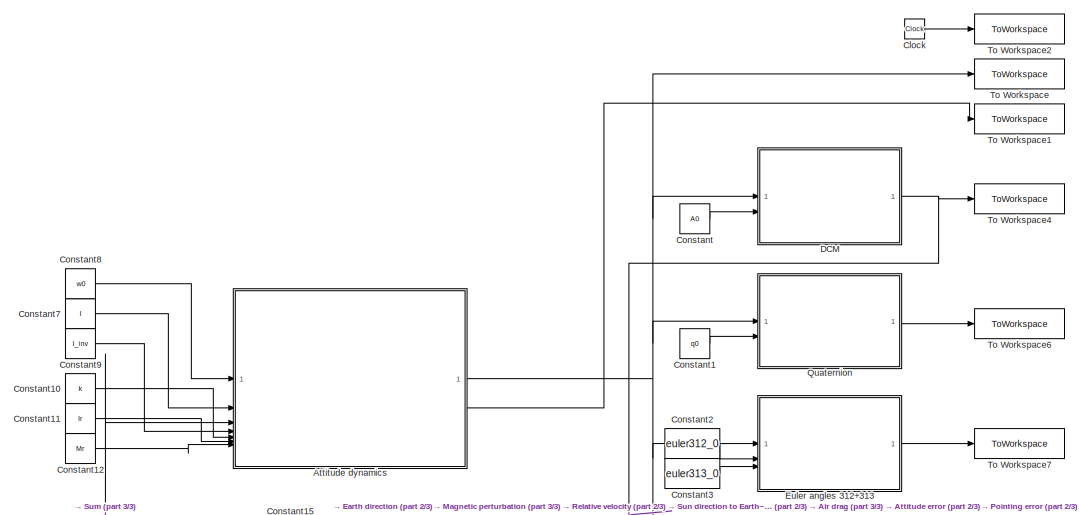
[diagram: root canvas - part 1/3, top center region]
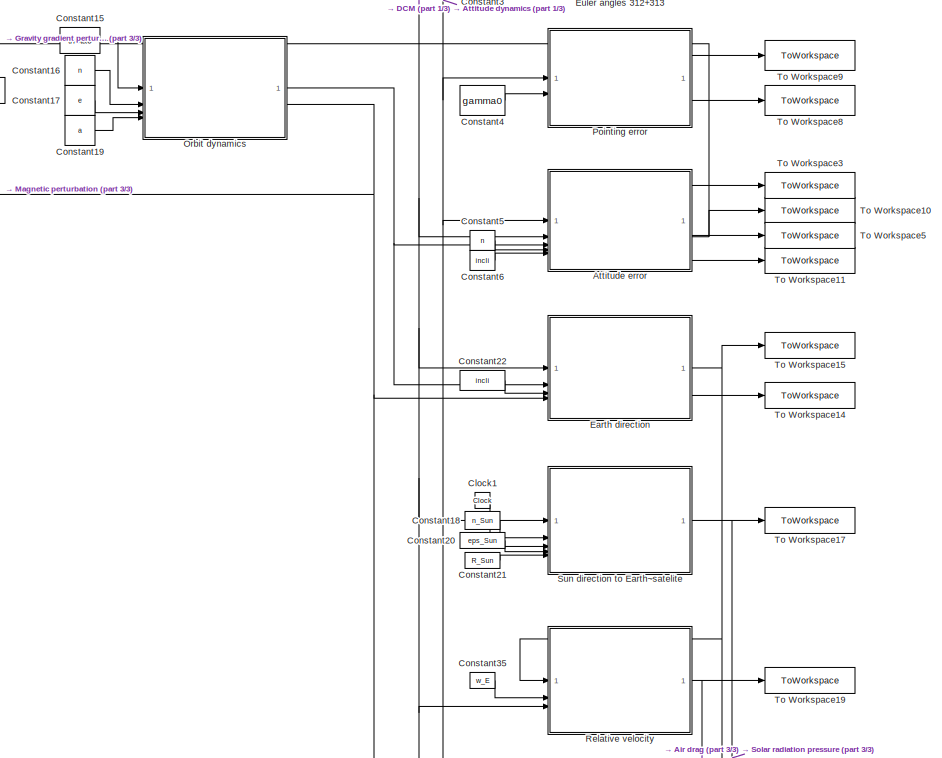
[diagram: root canvas - part 2/3, middle right region]
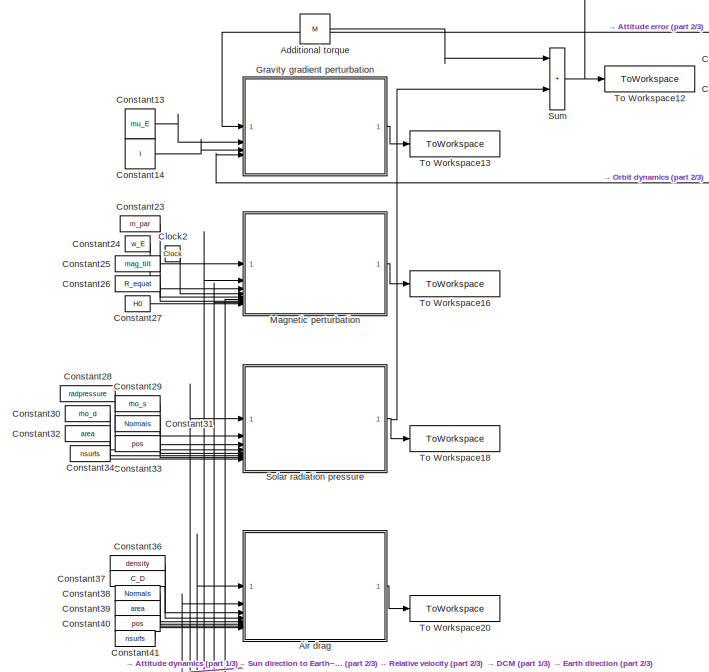
[diagram: root canvas - part 3/3, middle left region]
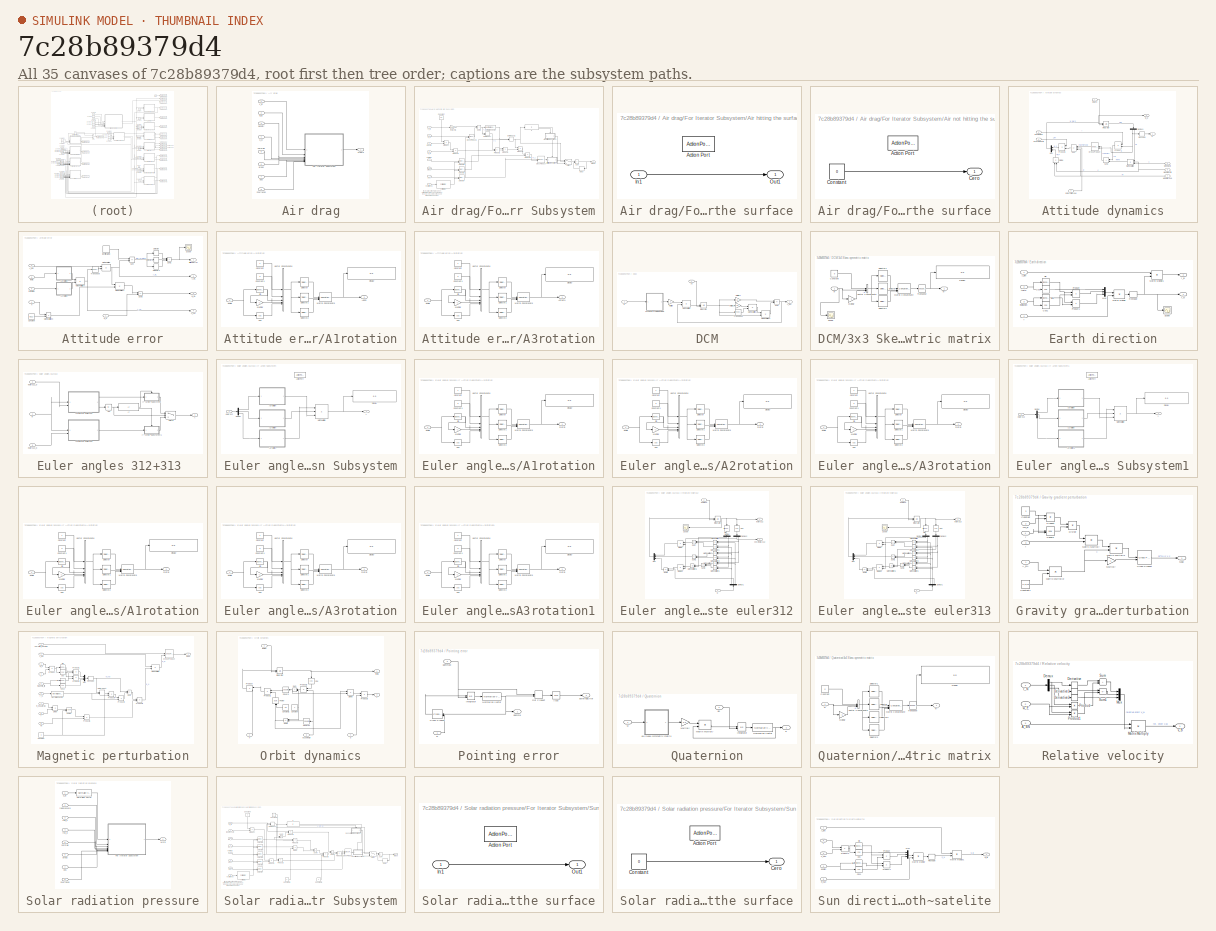
[diagram: thumbnail index - all 35 canvases of the model, root first then tree order]
MODEL slx_7c28b89379d4
KIND model
CONFIG AbsTol = 1e-07
CONFIG EnableMultiTasking = off
CONFIG FixedStep = auto
CONFIG MaxStep = auto
CONFIG MinStep = auto
CONFIG RelTol = 1e-07
CONFIG SampleTimeConstraint = Unconstrained
CONFIG SolverName = ode45
CONFIG StartTime = 0.0
CONFIG StopTime = sim_time
BLOCK [Constant] Additional torque
  Value = M
  VectorParams1D = off
BLOCK [SubSystem] Air drag
BLOCK [Inport] Air drag/C_D
  Port = 4
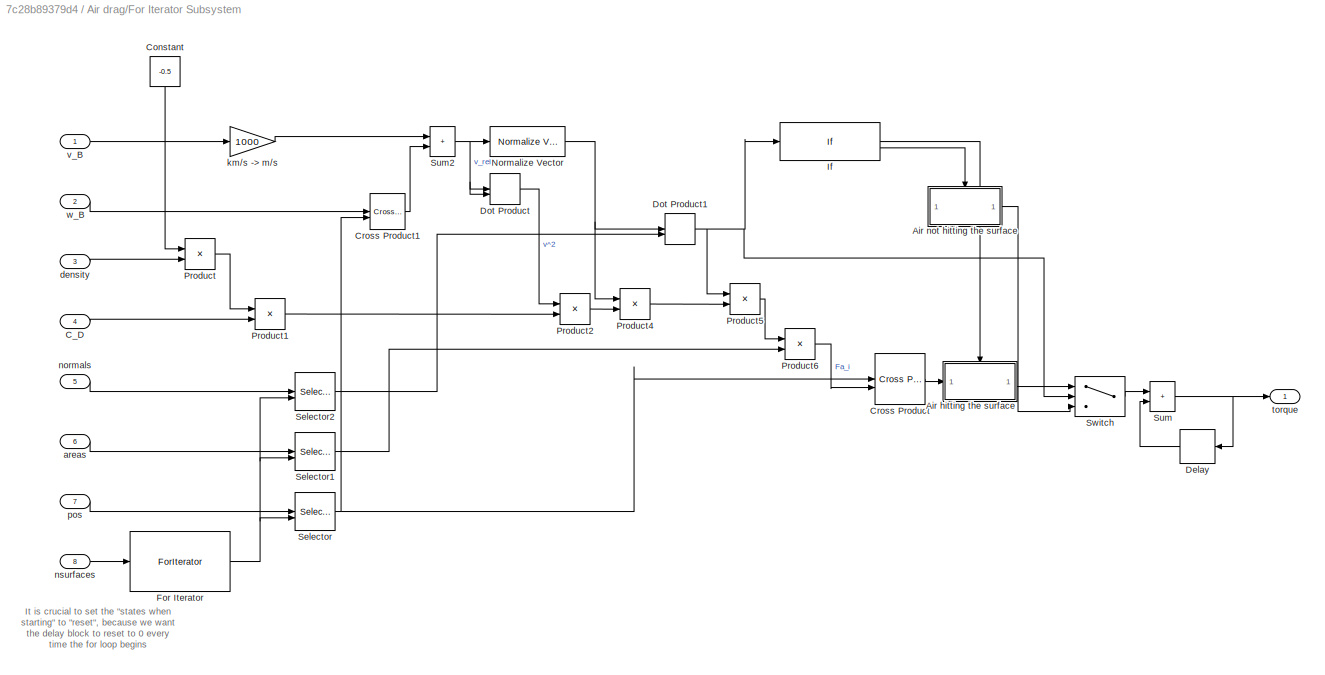
BLOCK [SubSystem] Air drag/For Iterator Subsystem
  TreatAsAtomicUnit = on
BLOCK [SubSystem] Air drag/For Iterator Subsystem/Air hitting the surface
  TreatAsAtomicUnit = on
BLOCK [ActionPort] Air drag/For Iterator Subsystem/Air hitting the surface/Action Port
  ActionPortLabel = if(u1 > 0)
BLOCK [Inport] Air drag/For Iterator Subsystem/Air hitting the surface/In1
BLOCK [Outport] Air drag/For Iterator Subsystem/Air hitting the surface/Out1
BLOCK [SubSystem] Air drag/For Iterator Subsystem/Air not hitting the surface
  TreatAsAtomicUnit = on
BLOCK [ActionPort] Air drag/For Iterator Subsystem/Air not hitting the surface/Action Port
  ActionPortLabel = else
BLOCK [Outport] Air drag/For Iterator Subsystem/Air not hitting the surface/Cero
BLOCK [Constant] Air drag/For Iterator Subsystem/Air not hitting the surface/Constant
  Value = 0
BLOCK [Inport] Air drag/For Iterator Subsystem/C_D
  Port = 4
BLOCK [Constant] Air drag/For Iterator Subsystem/Constant
  NameLocation = left
  Value = -0.5
BLOCK [Reference] Air drag/For Iterator Subsystem/Cross Product  REF=matrix_library/Cross Product
  LibrarySourceBlock = simulink/Matrix\nOperations/Cross Product
  SourceBlock = matrix_library/Cross Product
  SourceType = CrossProduct
BLOCK [Reference] Air drag/For Iterator Subsystem/Cross Product1  REF=matrix_library/Cross Product
  LibrarySourceBlock = simulink/Matrix\nOperations/Cross Product
  SourceBlock = matrix_library/Cross Product
  SourceType = CrossProduct
BLOCK [Delay] Air drag/For Iterator Subsystem/Delay
  DelayLength = 1
  InputPortMap = u0
  NameLocation = top
BLOCK [DotProduct] Air drag/For Iterator Subsystem/Dot Product
  OutDataTypeStr = Inherit: Inherit via internal rule
BLOCK [DotProduct] Air drag/For Iterator Subsystem/Dot Product1
  OutDataTypeStr = Inherit: Inherit via internal rule
BLOCK [ForIterator] Air drag/For Iterator Subsystem/For Iterator
  IterationSource = external
  ResetStates = reset
BLOCK [If] Air drag/For Iterator Subsystem/If
BLOCK [Reference] Air drag/For Iterator Subsystem/Normalize Vector  REF=vrlib/Utilities/Normalize Vector
  SourceBlock = vrlib/Utilities/Normalize Vector
  SourceType = Normalize Vector
BLOCK [Product] Air drag/For Iterator Subsystem/Product
BLOCK [Product] Air drag/For Iterator Subsystem/Product1
BLOCK [Product] Air drag/For Iterator Subsystem/Product2
BLOCK [Product] Air drag/For Iterator Subsystem/Product4
BLOCK [Product] Air drag/For Iterator Subsystem/Product5
BLOCK [Product] Air drag/For Iterator Subsystem/Product6
BLOCK [Selector] Air drag/For Iterator Subsystem/Selector
  IndexOptions = Select all,Index vector (port)
  Indices = [1 3],1
  InputPortWidth = 3
  NumberOfDimensions = 2
  OutputSizes = 1,1
BLOCK [Selector] Air drag/For Iterator Subsystem/Selector1
  IndexOptions = Select all,Index vector (port)
  Indices = [1 3],1
  InputPortWidth = 3
  NumberOfDimensions = 2
  OutputSizes = 1,1
BLOCK [Selector] Air drag/For Iterator Subsystem/Selector2
  IndexOptions = Select all,Index vector (port)
  Indices = [1 3],1
  InputPortWidth = 3
  NumberOfDimensions = 2
  OutputSizes = 1,1
BLOCK [Sum] Air drag/For Iterator Subsystem/Sum
  IconShape = rectangular
  Inputs = |++
BLOCK [Sum] Air drag/For Iterator Subsystem/Sum2
  IconShape = rectangular
  Inputs = |++
BLOCK [Switch] Air drag/For Iterator Subsystem/Switch
  Criteria = u2 > Threshold
  InputSameDT = off
  SaturateOnIntegerOverflow = off
BLOCK [Inport] Air drag/For Iterator Subsystem/areas
  Port = 6
BLOCK [Inport] Air drag/For Iterator Subsystem/density
  Port = 3
BLOCK [Gain] Air drag/For Iterator Subsystem/km//s -> m//s
  Gain = 1000
BLOCK [Inport] Air drag/For Iterator Subsystem/normals
  Port = 5
BLOCK [Inport] Air drag/For Iterator Subsystem/nsurfaces
  Port = 8
BLOCK [Inport] Air drag/For Iterator Subsystem/pos
  Port = 7
BLOCK [Outport] Air drag/For Iterator Subsystem/torque
BLOCK [Inport] Air drag/For Iterator Subsystem/v_B
BLOCK [Inport] Air drag/For Iterator Subsystem/w_B
  Port = 2
BLOCK [Outport] Air drag/Maero
BLOCK [Inport] Air drag/areas
  Port = 6
BLOCK [Inport] Air drag/density
  Port = 3
BLOCK [Inport] Air drag/normals
  Port = 5
BLOCK [Inport] Air drag/nsurfaces
  Port = 8
BLOCK [Inport] Air drag/pos
  Port = 7
BLOCK [Inport] Air drag/v_B
BLOCK [Inport] Air drag/w_B
  Port = 2
BLOCK [SubSystem] Attitude dynamics
BLOCK [Reference] Attitude dynamics/Cross Product  REF=matrix_library/Cross Product
  LibrarySourceBlock = simulink/Matrix\nOperations/Cross Product
  NameLocation = top
  SourceBlock = matrix_library/Cross Product
  SourceType = CrossProduct
BLOCK [Demux] Attitude dynamics/Demux1
  NameLocation = left
  Outputs = 2
BLOCK [Product] Attitude dynamics/Divide
  Inputs = */
  NameLocation = right
BLOCK [Inport] Attitude dynamics/External torque
  Port = 3
BLOCK [Inport] Attitude dynamics/Inertia matrix
  Port = 2
BLOCK [Integrator] Attitude dynamics/Integrator
  InitialConditionSource = external
BLOCK [Inport] Attitude dynamics/Inverted Inertia
  Port = 4
BLOCK [Product] Attitude dynamics/Matrix Multiply
  Inputs = 3
  NameLocation = top
BLOCK [Mux] Attitude dynamics/Mux
  DisplayOption = bar
  Inputs = 2
  NameLocation = top
BLOCK [Product] Attitude dynamics/Product
  Multiplication = Matrix(*)
  NameLocation = top
BLOCK [Product] Attitude dynamics/Product1
  Multiplication = Matrix(*)
  NameLocation = top
BLOCK [Reshape] Attitude dynamics/Reshape
  OutputDimensionality = Column vector (2-D)
BLOCK [Sum] Attitude dynamics/Sum
  IconShape = rectangular
  Inputs = |++-
  NameLocation = top
BLOCK [Sum] Attitude dynamics/Sum1
  IconShape = rectangular
  Inputs = |++
  NameLocation = top
BLOCK [Inport] Attitude dynamics/Wheel axis
  NameLocation = top
  Port = 5
BLOCK [Inport] Attitude dynamics/Wheel inertia
  NameLocation = top
  Port = 6
BLOCK [Inport] Attitude dynamics/Wheel torque
  NameLocation = top
  Port = 7
BLOCK [Outport] Attitude dynamics/w
BLOCK [Inport] Attitude dynamics/w0, wr0
BLOCK [Outport] Attitude dynamics/w_d
  Port = 2
BLOCK [SubSystem] Attitude error
BLOCK [SubSystem] Attitude error/A1rotation
BLOCK [Outport] Attitude error/A1rotation/A1incli
BLOCK [Constant] Attitude error/A1rotation/Constant
BLOCK [Constant] Attitude error/A1rotation/Constant1
  Value = 0
BLOCK [Trigonometry] Attitude error/A1rotation/Cos
  Operator = cos
BLOCK [Display] Attitude error/A1rotation/Display
  Decimation = 1
BLOCK [Concatenate] Attitude error/A1rotation/Matrix Concatenate
  ConcatenateDimension = 2
  Mode = Multidimensional array
  NumInputs = 3
BLOCK [Gain] Attitude error/A1rotation/Multiply
  Gain = -1
BLOCK [Selector] Attitude error/A1rotation/Selector
  IndexOptions = Index vector (dialog)
  Indices = [1 2 2]
  InputPortWidth = 5
  OutputSizes = 1
BLOCK [Selector] Attitude error/A1rotation/Selector1
  IndexOptions = Index vector (dialog)
  Indices = [2 5 4]
  InputPortWidth = 5
  OutputSizes = 1
BLOCK [Selector] Attitude error/A1rotation/Selector2
  IndexOptions = Index vector (dialog)
  Indices = [2 3 5]
  InputPortWidth = 5
  OutputSizes = 1
BLOCK [Trigonometry] Attitude error/A1rotation/Sin
BLOCK [Concatenate] Attitude error/A1rotation/Vector Concatenate
  NumInputs = 5
BLOCK [Inport] Attitude error/A1rotation/angle
BLOCK [SubSystem] Attitude error/A3rotation
BLOCK [Outport] Attitude error/A3rotation/A3theta
BLOCK [Constant] Attitude error/A3rotation/Constant
BLOCK [Constant] Attitude error/A3rotation/Constant1
  Value = 0
BLOCK [Trigonometry] Attitude error/A3rotation/Cos
  Operator = cos
BLOCK [Display] Attitude error/A3rotation/Display
  Decimation = 1
BLOCK [Concatenate] Attitude error/A3rotation/Matrix Concatenate
  ConcatenateDimension = 2
  Mode = Multidimensional array
  NumInputs = 3
BLOCK [Gain] Attitude error/A3rotation/Multiply
  Gain = -1
BLOCK [Selector] Attitude error/A3rotation/Selector
  IndexOptions = Index vector (dialog)
  Indices = [5 4 2]
  InputPortWidth = 5
  OutputSizes = 1
BLOCK [Selector] Attitude error/A3rotation/Selector1
  IndexOptions = Index vector (dialog)
  Indices = [3 5 2]
  InputPortWidth = 5
  OutputSizes = 1
BLOCK [Selector] Attitude error/A3rotation/Selector2
  IndexOptions = Index vector (dialog)
  Indices = [2 2 1]
  InputPortWidth = 5
  OutputSizes = 1
BLOCK [Trigonometry] Attitude error/A3rotation/Sin
BLOCK [Concatenate] Attitude error/A3rotation/Vector Concatenate
  NumInputs = 5
BLOCK [Inport] Attitude error/A3rotation/angle
BLOCK [Outport] Attitude error/A_BL
  Port = 2
BLOCK [Inport] Attitude error/A_BN
  Port = 2
BLOCK [Outport] Attitude error/A_LN
  Port = 4
BLOCK [Constant] Attitude error/Constant
  Value = [0;0;1]
  VectorParams1D = off
BLOCK [IdentityMatrix] Attitude error/IdentityMatrix
  OutputDimensions = 3
BLOCK [Product] Attitude error/Matrix Multiply
  Multiplication = Matrix(*)
BLOCK [Product] Attitude error/Matrix Multiply1
  Multiplication = Matrix(*)
BLOCK [Product] Attitude error/Matrix Multiply2
  Multiplication = Matrix(*)
BLOCK [Product] Attitude error/Matrix Multiply3
BLOCK [Scope] Attitude error/Scope
  Floating = off
  NumInputPorts = 1
  ScopeSpecificationString = Simulink.scopes.TimeScopeBlockCfg('CurrentConfiguration', extmgr.ConfigurationSet(extmgr.Configuration('Core','General UI',true),extmgr.Configuration('Core','Source UI',true),extmgr.Configuration('Sources','WiredSimulink',true,'DataLoggingVariableName','ScopeData1'),extmgr.Configuration('Visuals','Time Domain',true,'SerializedDisplays',{struct('MinYLimReal','-0.0000000000000006','MaxYLimReal','0.0...<+1481ch>
BLOCK [Selector] Attitude error/Selector
  IndexOptions = Index vector (dialog),Index vector (dialog)
  Indices = 1,1
  InputPortWidth = 3
  NumberOfDimensions = 2
  OutputSizes = 1,1
BLOCK [Selector] Attitude error/Selector1
  IndexOptions = Index vector (dialog),Index vector (dialog)
  Indices = 2,2
  InputPortWidth = 3
  NumberOfDimensions = 2
  OutputSizes = 1,1
BLOCK [Selector] Attitude error/Selector2
  IndexOptions = Index vector (dialog),Index vector (dialog)
  Indices = 3,3
  InputPortWidth = 3
  NumberOfDimensions = 2
  OutputSizes = 1,1
BLOCK [Sum] Attitude error/Sum
  IconShape = rectangular
  Inputs = |-+
BLOCK [Sum] Attitude error/Sum1
  IconShape = rectangular
  Inputs = |+++
BLOCK [Sum] Attitude error/Sum2
  IconShape = rectangular
  Inputs = |-+
BLOCK [Math] Attitude error/Transpose
  Operator = transpose
BLOCK [Outport] Attitude error/attitudeError
BLOCK [Inport] Attitude error/inclination
  Port = 5
BLOCK [Inport] Attitude error/n
  Port = 4
BLOCK [Inport] Attitude error/theta
  Port = 3
BLOCK [Inport] Attitude error/w_B
BLOCK [Outport] Attitude error/w_BL
  Port = 3
BLOCK [Clock] Clock
BLOCK [Clock] Clock1
BLOCK [Clock] Clock2
BLOCK [Constant] Constant
  Value = A0
  VectorParams1D = off
BLOCK [Constant] Constant1
  Value = q0
  VectorParams1D = off
BLOCK [Constant] Constant10
  Value = k
  VectorParams1D = off
BLOCK [Constant] Constant11
  Value = Ir
BLOCK [Constant] Constant12
  Value = Mr
BLOCK [Constant] Constant13
  Value = mu_E
BLOCK [Constant] Constant14
  Value = I
  VectorParams1D = off
BLOCK [Constant] Constant15
  Value = theta0
BLOCK [Constant] Constant16
  Value = n
BLOCK [Constant] Constant17
  Value = e
BLOCK [Constant] Constant18
  Value = n_Sun
BLOCK [Constant] Constant19
  Value = a
BLOCK [Constant] Constant2
  Value = euler312_0
  VectorParams1D = off
BLOCK [Constant] Constant20
  Value = eps_Sun
BLOCK [Constant] Constant21
  Value = R_Sun
BLOCK [Constant] Constant22
  Value = incli
BLOCK [Constant] Constant23
  Value = m_par
  VectorParams1D = off
BLOCK [Constant] Constant24
  Value = w_E
BLOCK [Constant] Constant25
  Value = mag_tilt
BLOCK [Constant] Constant26
  Value = R_equat
BLOCK [Constant] Constant27
  Value = H0
BLOCK [Constant] Constant28
  Value = radpressure
BLOCK [Constant] Constant29
  Value = rho_s
  VectorParams1D = off
BLOCK [Constant] Constant3
  Value = euler313_0
  VectorParams1D = off
BLOCK [Constant] Constant30
  Value = rho_d
  VectorParams1D = off
BLOCK [Constant] Constant31
  Value = Normals
  VectorParams1D = off
BLOCK [Constant] Constant32
  Value = area
  VectorParams1D = off
BLOCK [Constant] Constant33
  Value = pos
  VectorParams1D = off
BLOCK [Constant] Constant34
  Value = nsurfs
BLOCK [Constant] Constant35
  Value = w_E
BLOCK [Constant] Constant36
  Value = density
BLOCK [Constant] Constant37
  Value = C_D
BLOCK [Constant] Constant38
  Value = Normals
  VectorParams1D = off
BLOCK [Constant] Constant39
  Value = area
  VectorParams1D = off
BLOCK [Constant] Constant4
  Value = gamma0
  VectorParams1D = off
BLOCK [Constant] Constant40
  Value = pos
  VectorParams1D = off
BLOCK [Constant] Constant41
  Value = nsurfs
BLOCK [Constant] Constant5
  Value = n
BLOCK [Constant] Constant6
  Value = incli
BLOCK [Constant] Constant7
  Value = I
  VectorParams1D = off
BLOCK [Constant] Constant8
  Value = w0
  VectorParams1D = off
BLOCK [Constant] Constant9
  Value = I_inv
  VectorParams1D = off
BLOCK [SubSystem] DCM
BLOCK [SubSystem] DCM/3x3 Skew-symmetric matrix
BLOCK [Constant] DCM/3x3 Skew-symmetric matrix/Constant
  Value = 0
BLOCK [Display] DCM/3x3 Skew-symmetric matrix/Display
  Decimation = 1
BLOCK [Concatenate] DCM/3x3 Skew-symmetric matrix/Matrix Concatenate
  ConcatenateDimension = 2
  Mode = Multidimensional array
  NumInputs = 3
BLOCK [Gain] DCM/3x3 Skew-symmetric matrix/Multiply
  Gain = -1
BLOCK [Scope] DCM/3x3 Skew-symmetric matrix/Scope
  Floating = off
  NumInputPorts = 1
  ScopeSpecificationString = Simulink.scopes.TimeScopeBlockCfg('CurrentConfiguration', extmgr.ConfigurationSet(extmgr.Configuration('Core','General UI',true),extmgr.Configuration('Core','Source UI',true),extmgr.Configuration('Sources','WiredSimulink',true,'DataLoggingVariableName','ScopeData3'),extmgr.Configuration('Visuals','Time Domain',true,'SerializedDisplays',{struct('MinYLimReal','-0.40329','MaxYLimReal','0.85229','YLab...<+1418ch>
BLOCK [Selector] DCM/3x3 Skew-symmetric matrix/Selector
  IndexOptions = Index vector (dialog)
  Indices = [4 1 5]
  InputPortWidth = 7
  OutputSizes = 1
BLOCK [Selector] DCM/3x3 Skew-symmetric matrix/Selector1
  IndexOptions = Index vector (dialog)
  Indices = [1 7 3]
  InputPortWidth = 7
  OutputSizes = 1
BLOCK [Selector] DCM/3x3 Skew-symmetric matrix/Selector2
  IndexOptions = Index vector (dialog)
  Indices = [6 2 1]
  InputPortWidth = 7
  OutputSizes = 1
BLOCK [Math] DCM/3x3 Skew-symmetric matrix/Transpose
  Operator = transpose
BLOCK [Concatenate] DCM/3x3 Skew-symmetric matrix/Vector Concatenate
  NumInputs = 3
BLOCK [Inport] DCM/3x3 Skew-symmetric matrix/w
BLOCK [Outport] DCM/3x3 Skew-symmetric matrix/w^
BLOCK [Inport] DCM/A0
  Port = 2
BLOCK [Outport] DCM/A_BN
BLOCK [Integrator] DCM/Integrator
  InitialConditionSource = external
BLOCK [Product] DCM/Matrix Multiply
  Multiplication = Matrix(*)
BLOCK [Product] DCM/Matrix Multiply1
  Multiplication = Matrix(*)
BLOCK [Product] DCM/Matrix Multiply2
  Multiplication = Matrix(*)
BLOCK [Gain] DCM/Multiply
  Gain = -1
BLOCK [Gain] DCM/Multiply1
  Gain = 1.5
BLOCK [Gain] DCM/Multiply2
  Gain = 0.5
BLOCK [Sum] DCM/Sum
  IconShape = rectangular
  Inputs = |+-
BLOCK [Math] DCM/Transpose
  Operator = transpose
BLOCK [Inport] DCM/w
BLOCK [SubSystem] Earth direction
BLOCK [Inport] Earth direction/A_BN
BLOCK [Trigonometry] Earth direction/Cos
  Operator = cos
BLOCK [Trigonometry] Earth direction/Cos1
  Operator = cos
BLOCK [Product] Earth direction/Matrix Multiply
BLOCK [Product] Earth direction/Matrix Multiply1
  Multiplication = Matrix(*)
BLOCK [Mux] Earth direction/Mux
  DisplayOption = bar
  Inputs = 3
BLOCK [Product] Earth direction/Product
BLOCK [Product] Earth direction/Product1
BLOCK [Reshape] Earth direction/Reshape
  OutputDimensionality = Column vector (2-D)
BLOCK [Scope] Earth direction/Scope
  Floating = off
  NumInputPorts = 1
  ScopeSpecificationString = Simulink.scopes.TimeScopeBlockCfg('CurrentConfiguration', extmgr.ConfigurationSet(extmgr.Configuration('Core','General UI',true),extmgr.Configuration('Core','Source UI',true),extmgr.Configuration('Sources','WiredSimulink',true,'DataLoggingVariableName','ScopeData1'),extmgr.Configuration('Visuals','Time Domain',true,'SerializedDisplays',{struct('MinYLimReal','-11384.42534','MaxYLimReal','10378.8282...<+1451ch>
BLOCK [Trigonometry] Earth direction/Sin
BLOCK [Trigonometry] Earth direction/Sin1
BLOCK [Inport] Earth direction/inclination
  Port = 3
BLOCK [Inport] Earth direction/r
  Port = 4
BLOCK [Outport] Earth direction/r_B
  Port = 2
BLOCK [Outport] Earth direction/r_N
BLOCK [Inport] Earth direction/theta
  Port = 2
BLOCK [SubSystem] Euler angles 312+313 
BLOCK [Outport] Euler angles 312+313 /A
BLOCK [Abs] Euler angles 312+313 /Abs
  SaturateOnIntegerOverflow = off
BLOCK [If] Euler angles 312+313 /If
  IfExpression = u1 > 0.1
BLOCK [SubSystem] Euler angles 312+313 /If Action Subsystem
  TreatAsAtomicUnit = on
BLOCK [Outport] Euler angles 312+313 /If Action Subsystem/A
BLOCK [SubSystem] Euler angles 312+313 /If Action Subsystem/A1rotation
BLOCK [Constant] Euler angles 312+313 /If Action Subsystem/A1rotation/Constant
BLOCK [Constant] Euler angles 312+313 /If Action Subsystem/A1rotation/Constant1
  Value = 0
BLOCK [Trigonometry] Euler angles 312+313 /If Action Subsystem/A1rotation/Cos
  Operator = cos
BLOCK [Display] Euler angles 312+313 /If Action Subsystem/A1rotation/Display
  Decimation = 1
BLOCK [Concatenate] Euler angles 312+313 /If Action Subsystem/A1rotation/Matrix Concatenate
  ConcatenateDimension = 2
  Mode = Multidimensional array
  NumInputs = 3
BLOCK [Gain] Euler angles 312+313 /If Action Subsystem/A1rotation/Multiply
  Gain = -1
BLOCK [Selector] Euler angles 312+313 /If Action Subsystem/A1rotation/Selector
  IndexOptions = Index vector (dialog)
  Indices = [1 2 2]
  InputPortWidth = 5
  OutputSizes = 1
BLOCK [Selector] Euler angles 312+313 /If Action Subsystem/A1rotation/Selector1
  IndexOptions = Index vector (dialog)
  Indices = [2 5 4]
  InputPortWidth = 5
  OutputSizes = 1
BLOCK [Selector] Euler angles 312+313 /If Action Subsystem/A1rotation/Selector2
  IndexOptions = Index vector (dialog)
  Indices = [2 3 5]
  InputPortWidth = 5
  OutputSizes = 1
BLOCK [Trigonometry] Euler angles 312+313 /If Action Subsystem/A1rotation/Sin
BLOCK [Concatenate] Euler angles 312+313 /If Action Subsystem/A1rotation/Vector Concatenate
  NumInputs = 5
BLOCK [Inport] Euler angles 312+313 /If Action Subsystem/A1rotation/angle
BLOCK [Outport] Euler angles 312+313 /If Action Subsystem/A1rotation/matrix
BLOCK [SubSystem] Euler angles 312+313 /If Action Subsystem/A2rotation
BLOCK [Constant] Euler angles 312+313 /If Action Subsystem/A2rotation/Constant
BLOCK [Constant] Euler angles 312+313 /If Action Subsystem/A2rotation/Constant1
  Value = 0
BLOCK [Trigonometry] Euler angles 312+313 /If Action Subsystem/A2rotation/Cos
  Operator = cos
BLOCK [Display] Euler angles 312+313 /If Action Subsystem/A2rotation/Display
  Decimation = 1
BLOCK [Concatenate] Euler angles 312+313 /If Action Subsystem/A2rotation/Matrix Concatenate
  ConcatenateDimension = 2
  Mode = Multidimensional array
  NumInputs = 3
BLOCK [Gain] Euler angles 312+313 /If Action Subsystem/A2rotation/Multiply
  Gain = -1
BLOCK [Selector] Euler angles 312+313 /If Action Subsystem/A2rotation/Selector
  IndexOptions = Index vector (dialog)
  Indices = [5 2 3]
  InputPortWidth = 5
  OutputSizes = 1
BLOCK [Selector] Euler angles 312+313 /If Action Subsystem/A2rotation/Selector1
  IndexOptions = Index vector (dialog)
  Indices = [2 1 2]
  InputPortWidth = 5
  OutputSizes = 1
BLOCK [Selector] Euler angles 312+313 /If Action Subsystem/A2rotation/Selector2
  IndexOptions = Index vector (dialog)
  Indices = [4 2 5]
  InputPortWidth = 5
  OutputSizes = 1
BLOCK [Trigonometry] Euler angles 312+313 /If Action Subsystem/A2rotation/Sin
BLOCK [Concatenate] Euler angles 312+313 /If Action Subsystem/A2rotation/Vector Concatenate
  NumInputs = 5
BLOCK [Inport] Euler angles 312+313 /If Action Subsystem/A2rotation/angle
BLOCK [Outport] Euler angles 312+313 /If Action Subsystem/A2rotation/matrix
BLOCK [SubSystem] Euler angles 312+313 /If Action Subsystem/A3rotation
BLOCK [Constant] Euler angles 312+313 /If Action Subsystem/A3rotation/Constant
BLOCK [Constant] Euler angles 312+313 /If Action Subsystem/A3rotation/Constant1
  Value = 0
BLOCK [Trigonometry] Euler angles 312+313 /If Action Subsystem/A3rotation/Cos
  Operator = cos
BLOCK [Display] Euler angles 312+313 /If Action Subsystem/A3rotation/Display
  Decimation = 1
BLOCK [Concatenate] Euler angles 312+313 /If Action Subsystem/A3rotation/Matrix Concatenate
  ConcatenateDimension = 2
  Mode = Multidimensional array
  NumInputs = 3
BLOCK [Gain] Euler angles 312+313 /If Action Subsystem/A3rotation/Multiply
  Gain = -1
BLOCK [Selector] Euler angles 312+313 /If Action Subsystem/A3rotation/Selector
  IndexOptions = Index vector (dialog)
  Indices = [5 4 2]
  InputPortWidth = 5
  OutputSizes = 1
BLOCK [Selector] Euler angles 312+313 /If Action Subsystem/A3rotation/Selector1
  IndexOptions = Index vector (dialog)
  Indices = [3 5 2]
  InputPortWidth = 5
  OutputSizes = 1
BLOCK [Selector] Euler angles 312+313 /If Action Subsystem/A3rotation/Selector2
  IndexOptions = Index vector (dialog)
  Indices = [2 2 1]
  InputPortWidth = 5
  OutputSizes = 1
BLOCK [Trigonometry] Euler angles 312+313 /If Action Subsystem/A3rotation/Sin
BLOCK [Concatenate] Euler angles 312+313 /If Action Subsystem/A3rotation/Vector Concatenate
  NumInputs = 5
BLOCK [Inport] Euler angles 312+313 /If Action Subsystem/A3rotation/angle
BLOCK [Outport] Euler angles 312+313 /If Action Subsystem/A3rotation/matrix
BLOCK [ActionPort] Euler angles 312+313 /If Action Subsystem/Action Port
  ActionPortLabel = if(u1 > 0.1)
BLOCK [Demux] Euler angles 312+313 /If Action Subsystem/Demux
  Outputs = 3
BLOCK [Display] Euler angles 312+313 /If Action Subsystem/Display
  Decimation = 1
BLOCK [Product] Euler angles 312+313 /If Action Subsystem/Matrix Multiply
  Inputs = 3
  Multiplication = Matrix(*)
BLOCK [Inport] Euler angles 312+313 /If Action Subsystem/euler312
BLOCK [SubSystem] Euler angles 312+313 /If Action Subsystem1
  TreatAsAtomicUnit = on
BLOCK [Outport] Euler angles 312+313 /If Action Subsystem1/A
BLOCK [SubSystem] Euler angles 312+313 /If Action Subsystem1/A1rotation
BLOCK [Constant] Euler angles 312+313 /If Action Subsystem1/A1rotation/Constant
BLOCK [Constant] Euler angles 312+313 /If Action Subsystem1/A1rotation/Constant1
  Value = 0
BLOCK [Trigonometry] Euler angles 312+313 /If Action Subsystem1/A1rotation/Cos
  Operator = cos
BLOCK [Display] Euler angles 312+313 /If Action Subsystem1/A1rotation/Display
  Decimation = 1
BLOCK [Concatenate] Euler angles 312+313 /If Action Subsystem1/A1rotation/Matrix Concatenate
  ConcatenateDimension = 2
  Mode = Multidimensional array
  NumInputs = 3
BLOCK [Gain] Euler angles 312+313 /If Action Subsystem1/A1rotation/Multiply
  Gain = -1
BLOCK [Selector] Euler angles 312+313 /If Action Subsystem1/A1rotation/Selector
  IndexOptions = Index vector (dialog)
  Indices = [1 2 2]
  InputPortWidth = 5
  OutputSizes = 1
BLOCK [Selector] Euler angles 312+313 /If Action Subsystem1/A1rotation/Selector1
  IndexOptions = Index vector (dialog)
  Indices = [2 5 4]
  InputPortWidth = 5
  OutputSizes = 1
BLOCK [Selector] Euler angles 312+313 /If Action Subsystem1/A1rotation/Selector2
  IndexOptions = Index vector (dialog)
  Indices = [2 3 5]
  InputPortWidth = 5
  OutputSizes = 1
BLOCK [Trigonometry] Euler angles 312+313 /If Action Subsystem1/A1rotation/Sin
BLOCK [Concatenate] Euler angles 312+313 /If Action Subsystem1/A1rotation/Vector Concatenate
  NumInputs = 5
BLOCK [Inport] Euler angles 312+313 /If Action Subsystem1/A1rotation/angle
BLOCK [Outport] Euler angles 312+313 /If Action Subsystem1/A1rotation/matrix
BLOCK [SubSystem] Euler angles 312+313 /If Action Subsystem1/A3rotation
BLOCK [Constant] Euler angles 312+313 /If Action Subsystem1/A3rotation/Constant
BLOCK [Constant] Euler angles 312+313 /If Action Subsystem1/A3rotation/Constant1
  Value = 0
BLOCK [Trigonometry] Euler angles 312+313 /If Action Subsystem1/A3rotation/Cos
  Operator = cos
BLOCK [Display] Euler angles 312+313 /If Action Subsystem1/A3rotation/Display
  Decimation = 1
BLOCK [Concatenate] Euler angles 312+313 /If Action Subsystem1/A3rotation/Matrix Concatenate
  ConcatenateDimension = 2
  Mode = Multidimensional array
  NumInputs = 3
BLOCK [Gain] Euler angles 312+313 /If Action Subsystem1/A3rotation/Multiply
  Gain = -1
BLOCK [Selector] Euler angles 312+313 /If Action Subsystem1/A3rotation/Selector
  IndexOptions = Index vector (dialog)
  Indices = [5 4 2]
  InputPortWidth = 5
  OutputSizes = 1
BLOCK [Selector] Euler angles 312+313 /If Action Subsystem1/A3rotation/Selector1
  IndexOptions = Index vector (dialog)
  Indices = [3 5 2]
  InputPortWidth = 5
  OutputSizes = 1
BLOCK [Selector] Euler angles 312+313 /If Action Subsystem1/A3rotation/Selector2
  IndexOptions = Index vector (dialog)
  Indices = [2 2 1]
  InputPortWidth = 5
  OutputSizes = 1
BLOCK [Trigonometry] Euler angles 312+313 /If Action Subsystem1/A3rotation/Sin
BLOCK [Concatenate] Euler angles 312+313 /If Action Subsystem1/A3rotation/Vector Concatenate
  NumInputs = 5
BLOCK [Inport] Euler angles 312+313 /If Action Subsystem1/A3rotation/angle
BLOCK [Outport] Euler angles 312+313 /If Action Subsystem1/A3rotation/matrix
BLOCK [SubSystem] Euler angles 312+313 /If Action Subsystem1/A3rotation1
BLOCK [Constant] Euler angles 312+313 /If Action Subsystem1/A3rotation1/Constant
BLOCK [Constant] Euler angles 312+313 /If Action Subsystem1/A3rotation1/Constant1
  Value = 0
BLOCK [Trigonometry] Euler angles 312+313 /If Action Subsystem1/A3rotation1/Cos
  Operator = cos
BLOCK [Display] Euler angles 312+313 /If Action Subsystem1/A3rotation1/Display
  Decimation = 1
BLOCK [Concatenate] Euler angles 312+313 /If Action Subsystem1/A3rotation1/Matrix Concatenate
  ConcatenateDimension = 2
  Mode = Multidimensional array
  NumInputs = 3
BLOCK [Gain] Euler angles 312+313 /If Action Subsystem1/A3rotation1/Multiply
  Gain = -1
BLOCK [Selector] Euler angles 312+313 /If Action Subsystem1/A3rotation1/Selector
  IndexOptions = Index vector (dialog)
  Indices = [5 4 2]
  InputPortWidth = 5
  OutputSizes = 1
BLOCK [Selector] Euler angles 312+313 /If Action Subsystem1/A3rotation1/Selector1
  IndexOptions = Index vector (dialog)
  Indices = [3 5 2]
  InputPortWidth = 5
  OutputSizes = 1
BLOCK [Selector] Euler angles 312+313 /If Action Subsystem1/A3rotation1/Selector2
  IndexOptions = Index vector (dialog)
  Indices = [2 2 1]
  InputPortWidth = 5
  OutputSizes = 1
BLOCK [Trigonometry] Euler angles 312+313 /If Action Subsystem1/A3rotation1/Sin
BLOCK [Concatenate] Euler angles 312+313 /If Action Subsystem1/A3rotation1/Vector Concatenate
  NumInputs = 5
BLOCK [Inport] Euler angles 312+313 /If Action Subsystem1/A3rotation1/angle
BLOCK [Outport] Euler angles 312+313 /If Action Subsystem1/A3rotation1/matrix
BLOCK [ActionPort] Euler angles 312+313 /If Action Subsystem1/Action Port
  ActionPortLabel = else
BLOCK [Demux] Euler angles 312+313 /If Action Subsystem1/Demux
  Outputs = 3
BLOCK [Display] Euler angles 312+313 /If Action Subsystem1/Display
  Decimation = 1
BLOCK [Product] Euler angles 312+313 /If Action Subsystem1/Matrix Multiply
  Inputs = 3
  Multiplication = Matrix(*)
BLOCK [Inport] Euler angles 312+313 /If Action Subsystem1/euler313
BLOCK [SubSystem] Euler angles 312+313 /Integrate euler312
BLOCK [Trigonometry] Euler angles 312+313 /Integrate euler312/Cos
  NameLocation = left
  Operator = cos
BLOCK [Demux] Euler angles 312+313 /Integrate euler312/Demux
  NameLocation = left
  Outputs = 3
BLOCK [Demux] Euler angles 312+313 /Integrate euler312/Demux1
  NameLocation = right
  Outputs = 3
BLOCK [Demux] Euler angles 312+313 /Integrate euler312/Demux2
  NameLocation = left
  Outputs = 3
BLOCK [Product] Euler angles 312+313 /Integrate euler312/Divide
  Inputs = */
  NameLocation = top
BLOCK [Product] Euler angles 312+313 /Integrate euler312/Divide1
  Inputs = */
  NameLocation = top
BLOCK [Integrator] Euler angles 312+313 /Integrate euler312/Integrator
  InitialConditionSource = external
BLOCK [Product] Euler angles 312+313 /Integrate euler312/Matrix Multiply
  NameLocation = top
BLOCK [Product] Euler angles 312+313 /Integrate euler312/Matrix Multiply1
  NameLocation = top
BLOCK [Product] Euler angles 312+313 /Integrate euler312/Matrix Multiply2
  NameLocation = top
BLOCK [Product] Euler angles 312+313 /Integrate euler312/Matrix Multiply3
  NameLocation = top
BLOCK [Product] Euler angles 312+313 /Integrate euler312/Matrix Multiply4
  NameLocation = top
BLOCK [Product] Euler angles 312+313 /Integrate euler312/Matrix Multiply5
  NameLocation = top
BLOCK [Product] Euler angles 312+313 /Integrate euler312/Matrix Multiply6
  NameLocation = top
BLOCK [Mux] Euler angles 312+313 /Integrate euler312/Mux
  DisplayOption = bar
  Inputs = 3
  NameLocation = top
BLOCK [Scope] Euler angles 312+313 /Integrate euler312/Scope
  Floating = off
  NameLocation = top
  NumInputPorts = 1
  ScopeSpecificationString = Simulink.scopes.TimeScopeBlockCfg('CurrentConfiguration', extmgr.ConfigurationSet(extmgr.Configuration('Core','General UI',true),extmgr.Configuration('Core','Source UI',true),extmgr.Configuration('Sources','WiredSimulink',true,'DataLoggingVariableName','ScopeData1'),extmgr.Configuration('Visuals','Time Domain',true,'SerializedDisplays',{struct('MinYLimReal','-29.06645','MaxYLimReal','73.0633','YLa...<+1403ch>
BLOCK [Trigonometry] Euler angles 312+313 /Integrate euler312/Sin
  NameLocation = left
BLOCK [Sum] Euler angles 312+313 /Integrate euler312/Sum
  IconShape = rectangular
  Inputs = |+-
  NameLocation = top
BLOCK [Sum] Euler angles 312+313 /Integrate euler312/Sum1
  IconShape = rectangular
  Inputs = |++
  NameLocation = top
BLOCK [Sum] Euler angles 312+313 /Integrate euler312/Sum2
  IconShape = rectangular
  Inputs = |+-
  NameLocation = top
BLOCK [Sum] Euler angles 312+313 /Integrate euler312/Sum3
  IconShape = rectangular
  Inputs = |+-
  NameLocation = top
BLOCK [Inport] Euler angles 312+313 /Integrate euler312/angles0
  Port = 2
BLOCK [Outport] Euler angles 312+313 /Integrate euler312/cos(theta)312
  Port = 2
BLOCK [Outport] Euler angles 312+313 /Integrate euler312/euler312
BLOCK [Inport] Euler angles 312+313 /Integrate euler312/w
BLOCK [SubSystem] Euler angles 312+313 /Integrate euler313
BLOCK [Trigonometry] Euler angles 312+313 /Integrate euler313/Cos
  NameLocation = left
  Operator = cos
BLOCK [Demux] Euler angles 312+313 /Integrate euler313/Demux
  NameLocation = left
  Outputs = 3
BLOCK [Demux] Euler angles 312+313 /Integrate euler313/Demux1
  NameLocation = right
  Outputs = 3
BLOCK [Demux] Euler angles 312+313 /Integrate euler313/Demux2
  NameLocation = left
  Outputs = 3
BLOCK [Product] Euler angles 312+313 /Integrate euler313/Divide
  Inputs = */
  NameLocation = top
BLOCK [Product] Euler angles 312+313 /Integrate euler313/Divide1
  Inputs = */
  NameLocation = top
BLOCK [Integrator] Euler angles 312+313 /Integrate euler313/Integrator
  InitialConditionSource = external
BLOCK [Product] Euler angles 312+313 /Integrate euler313/Matrix Multiply
  NameLocation = top
BLOCK [Product] Euler angles 312+313 /Integrate euler313/Matrix Multiply1
  NameLocation = top
BLOCK [Product] Euler angles 312+313 /Integrate euler313/Matrix Multiply2
  NameLocation = top
BLOCK [Product] Euler angles 312+313 /Integrate euler313/Matrix Multiply3
  NameLocation = top
BLOCK [Product] Euler angles 312+313 /Integrate euler313/Matrix Multiply4
  NameLocation = top
BLOCK [Product] Euler angles 312+313 /Integrate euler313/Matrix Multiply5
  NameLocation = top
BLOCK [Product] Euler angles 312+313 /Integrate euler313/Matrix Multiply6
  NameLocation = top
BLOCK [Mux] Euler angles 312+313 /Integrate euler313/Mux
  DisplayOption = bar
  Inputs = 3
  NameLocation = top
BLOCK [Scope] Euler angles 312+313 /Integrate euler313/Scope
  Floating = off
  NameLocation = top
  NumInputPorts = 1
  ScopeSpecificationString = Simulink.scopes.TimeScopeBlockCfg('CurrentConfiguration', extmgr.ConfigurationSet(extmgr.Configuration('Core','General UI',true),extmgr.Configuration('Core','Source UI',true),extmgr.Configuration('Sources','WiredSimulink',true,'DataLoggingVariableName','ScopeData2'),extmgr.Configuration('Visuals','Time Domain',true,'SerializedDisplays',{struct('MinYLimReal','-34.15993','MaxYLimReal','323.00699','Y...<+1411ch>
BLOCK [Trigonometry] Euler angles 312+313 /Integrate euler313/Sin
  NameLocation = left
BLOCK [Sum] Euler angles 312+313 /Integrate euler313/Sum
  IconShape = rectangular
  Inputs = |++
  NameLocation = top
BLOCK [Sum] Euler angles 312+313 /Integrate euler313/Sum1
  IconShape = rectangular
  Inputs = |+-
  NameLocation = top
BLOCK [Sum] Euler angles 312+313 /Integrate euler313/Sum2
  IconShape = rectangular
  Inputs = |+-
  NameLocation = top
BLOCK [Sum] Euler angles 312+313 /Integrate euler313/Sum3
  IconShape = rectangular
  Inputs = |++
  NameLocation = top
BLOCK [Inport] Euler angles 312+313 /Integrate euler313/angles0
  Port = 2
BLOCK [Outport] Euler angles 312+313 /Integrate euler313/euler313
BLOCK [Inport] Euler angles 312+313 /Integrate euler313/w
BLOCK [Switch] Euler angles 312+313 /Switch
  Criteria = u2 > Threshold
  InputSameDT = off
  SaturateOnIntegerOverflow = off
  Threshold = 0.1
BLOCK [Inport] Euler angles 312+313 /euler312_0
  Port = 2
BLOCK [Inport] Euler angles 312+313 /euler313_0
  Port = 3
BLOCK [Inport] Euler angles 312+313 /w
BLOCK [SubSystem] Gravity gradient perturbation
BLOCK [Inport] Gravity gradient perturbation/A_BL
BLOCK [Constant] Gravity gradient perturbation/Constant
  Value = 3
BLOCK [Constant] Gravity gradient perturbation/Constant1
  Value = [1;0;0]
  VectorParams1D = off
BLOCK [Reference] Gravity gradient perturbation/Cross Product  REF=matrix_library/Cross Product
  LibrarySourceBlock = simulink/Matrix\nOperations/Cross Product
  SourceBlock = matrix_library/Cross Product
  SourceType = CrossProduct
BLOCK [Product] Gravity gradient perturbation/Divide
  Inputs = */
BLOCK [Inport] Gravity gradient perturbation/I
  Port = 3
BLOCK [Product] Gravity gradient perturbation/Matrix Multiply
BLOCK [Product] Gravity gradient perturbation/Matrix Multiply1
  Multiplication = Matrix(*)
BLOCK [Product] Gravity gradient perturbation/Matrix Multiply2
  Multiplication = Matrix(*)
BLOCK [Outport] Gravity gradient perturbation/Mgg
BLOCK [Gain] Gravity gradient perturbation/Multiply
  Gain = -1
BLOCK [Product] Gravity gradient perturbation/Product
BLOCK [Math] Gravity gradient perturbation/Square
  Operator = pow
BLOCK [Inport] Gravity gradient perturbation/mu_E
  Port = 2
BLOCK [Inport] Gravity gradient perturbation/r
  Port = 4
BLOCK [SubSystem] Magnetic perturbation
BLOCK [Inport] Magnetic perturbation/A_BN
  Port = 2
BLOCK [Constant] Magnetic perturbation/Constant
  Value = 3
BLOCK [Trigonometry] Magnetic perturbation/Cos
  Operator = cos
BLOCK [Trigonometry] Magnetic perturbation/Cos1
  Operator = cos
BLOCK [Reference] Magnetic perturbation/Cross Product  REF=matrix_library/Cross Product
  LibrarySourceBlock = simulink/Matrix\nOperations/Cross Product
  SourceBlock = matrix_library/Cross Product
  SourceType = CrossProduct
BLOCK [Product] Magnetic perturbation/Divide
  Inputs = */
BLOCK [DotProduct] Magnetic perturbation/Dot Product
  OutDataTypeStr = Inherit: Inherit via internal rule
BLOCK [Inport] Magnetic perturbation/H0
  Port = 9
BLOCK [Product] Magnetic perturbation/Matrix Multiply
  Multiplication = Matrix(*)
BLOCK [Outport] Magnetic perturbation/Mmag
BLOCK [Mux] Magnetic perturbation/Mux
  DisplayOption = bar
  Inputs = 3
BLOCK [Reference] Magnetic perturbation/Normalize Vector  REF=vrlib/Utilities/Normalize Vector
  SourceBlock = vrlib/Utilities/Normalize Vector
  SourceType = Normalize Vector
BLOCK [Math] Magnetic perturbation/Power
  Operator = pow
BLOCK [Product] Magnetic perturbation/Product
BLOCK [Product] Magnetic perturbation/Product1
BLOCK [Product] Magnetic perturbation/Product2
BLOCK [Product] Magnetic perturbation/Product3
BLOCK [Product] Magnetic perturbation/Product4
BLOCK [Product] Magnetic perturbation/Product5
BLOCK [Product] Magnetic perturbation/Product6
BLOCK [Inport] Magnetic perturbation/R_equatorial
  Port = 7
BLOCK [Reshape] Magnetic perturbation/Reshape
  OutputDimensionality = Column vector (2-D)
BLOCK [Trigonometry] Magnetic perturbation/Sin
BLOCK [Trigonometry] Magnetic perturbation/Sin1
BLOCK [Sum] Magnetic perturbation/Sum
  IconShape = rectangular
  Inputs = |-+
BLOCK [Inport] Magnetic perturbation/magnetic_tilt
  Port = 5
BLOCK [Inport] Magnetic perturbation/parasitic_induction
BLOCK [Inport] Magnetic perturbation/r
  Port = 8
BLOCK [Inport] Magnetic perturbation/r_N
  Port = 6
BLOCK [Inport] Magnetic perturbation/t
  Port = 4
BLOCK [Inport] Magnetic perturbation/w_E
  Port = 3
BLOCK [SubSystem] Orbit dynamics
BLOCK [Constant] Orbit dynamics/Constant
BLOCK [Constant] Orbit dynamics/Constant1
  NameLocation = top
  Value = -1.5
BLOCK [Trigonometry] Orbit dynamics/Cos
  NameLocation = left
  Operator = cos
BLOCK [Product] Orbit dynamics/Divide
  Inputs = */
BLOCK [Integrator] Orbit dynamics/Integrator
  InitialConditionSource = external
BLOCK [Math] Orbit dynamics/Power
  NameLocation = right
  Operator = pow
BLOCK [Product] Orbit dynamics/Product
  NameLocation = top
BLOCK [Product] Orbit dynamics/Product1
  NameLocation = top
BLOCK [Product] Orbit dynamics/Product2
  NameLocation = top
BLOCK [Product] Orbit dynamics/Product3
BLOCK [Math] Orbit dynamics/Square
  NameLocation = top
  Operator = square
BLOCK [Math] Orbit dynamics/Square1
  NameLocation = top
  Operator = square
BLOCK [Sum] Orbit dynamics/Sum
  IconShape = rectangular
  Inputs = |++
  NameLocation = top
BLOCK [Sum] Orbit dynamics/Sum1
  IconShape = rectangular
  Inputs = |+-
  NameLocation = top
BLOCK [Inport] Orbit dynamics/a
  Port = 4
BLOCK [Inport] Orbit dynamics/eccentricity
  Port = 3
BLOCK [Inport] Orbit dynamics/n
  Port = 2
BLOCK [Outport] Orbit dynamics/r
  Port = 2
BLOCK [Outport] Orbit dynamics/theta
BLOCK [Inport] Orbit dynamics/theta0
BLOCK [SubSystem] Pointing error
BLOCK [Trigonometry] Pointing error/Acos
  Operator = acos
BLOCK [Reference] Pointing error/Cross Product  REF=matrix_library/Cross Product
  LibrarySourceBlock = simulink/Matrix\nOperations/Cross Product
  NameLocation = top
  SourceBlock = matrix_library/Cross Product
  SourceType = CrossProduct
BLOCK [DotProduct] Pointing error/Dot Product
  OutDataTypeStr = Inherit: Inherit via internal rule
BLOCK [Integrator] Pointing error/Integrator
  InitialConditionSource = external
BLOCK [Reference] Pointing error/Normalize Vector  REF=vrlib/Utilities/Normalize Vector
  SourceBlock = vrlib/Utilities/Normalize Vector
  SourceType = Normalize Vector
BLOCK [Outport] Pointing error/gamma
BLOCK [Inport] Pointing error/gamma0
  Port = 2
BLOCK [Outport] Pointing error/pointingError
  Port = 2
BLOCK [Inport] Pointing error/w
BLOCK [SubSystem] Quaternion
BLOCK [SubSystem] Quaternion/4x4 Skew-symmetric matrix
BLOCK [Constant] Quaternion/4x4 Skew-symmetric matrix/Constant
  Value = 0
BLOCK [Display] Quaternion/4x4 Skew-symmetric matrix/Display
  Decimation = 1
BLOCK [Concatenate] Quaternion/4x4 Skew-symmetric matrix/Matrix Concatenate
  ConcatenateDimension = 2
  Mode = Multidimensional array
  NumInputs = 4
BLOCK [Gain] Quaternion/4x4 Skew-symmetric matrix/Multiply
  Gain = -1
BLOCK [Selector] Quaternion/4x4 Skew-symmetric matrix/Selector
  IndexOptions = Index vector (dialog)
  Indices = [7 1 2 3]
  InputPortWidth = 7
  OutputSizes = 1
BLOCK [Selector] Quaternion/4x4 Skew-symmetric matrix/Selector1
  IndexOptions = Index vector (dialog)
  Indices = [1 4 6 2]
  InputPortWidth = 7
  OutputSizes = 1
BLOCK [Selector] Quaternion/4x4 Skew-symmetric matrix/Selector2
  IndexOptions = Index vector (dialog)
  Indices = [3 5 1 4]
  InputPortWidth = 7
  OutputSizes = 1
BLOCK [Selector] Quaternion/4x4 Skew-symmetric matrix/Selector3
  IndexOptions = Index vector (dialog)
  Indices = [5 6 7 1]
  InputPortWidth = 7
  OutputSizes = 1
BLOCK [Math] Quaternion/4x4 Skew-symmetric matrix/Transpose
  Operator = transpose
BLOCK [Concatenate] Quaternion/4x4 Skew-symmetric matrix/Vector Concatenate
  NumInputs = 3
BLOCK [Inport] Quaternion/4x4 Skew-symmetric matrix/w
BLOCK [Outport] Quaternion/4x4 Skew-symmetric matrix/w^
BLOCK [Integrator] Quaternion/Integrator
  InitialConditionSource = external
BLOCK [Product] Quaternion/Matrix Multiply
  Multiplication = Matrix(*)
BLOCK [Gain] Quaternion/Multiply
  Gain = 0.5
BLOCK [Reference] Quaternion/Normalize Vector  REF=vrlib/Utilities/Normalize Vector
  SourceBlock = vrlib/Utilities/Normalize Vector
  SourceType = Normalize Vector
BLOCK [Outport] Quaternion/q
BLOCK [Inport] Quaternion/q0
  Port = 2
BLOCK [Inport] Quaternion/w
BLOCK [SubSystem] Relative velocity
BLOCK [Inport] Relative velocity/A_BN
  Port = 3
BLOCK [Demux] Relative velocity/Demux
  Outputs = 3
BLOCK [Derivative] Relative velocity/Derivative
BLOCK [Derivative] Relative velocity/Derivative1
BLOCK [Derivative] Relative velocity/Derivative2
BLOCK [Product] Relative velocity/Matrix Multiply
  Multiplication = Matrix(*)
BLOCK [Mux] Relative velocity/Mux
  DisplayOption = bar
  Inputs = 3
BLOCK [Product] Relative velocity/Product
BLOCK [Product] Relative velocity/Product1
BLOCK [Sum] Relative velocity/Sum
  IconShape = rectangular
  Inputs = |++
BLOCK [Sum] Relative velocity/Sum1
  IconShape = rectangular
  Inputs = |+-
BLOCK [Inport] Relative velocity/r_N
BLOCK [Outport] Relative velocity/v_B
BLOCK [Inport] Relative velocity/w_E
  Port = 2
BLOCK [SubSystem] Solar radiation pressure
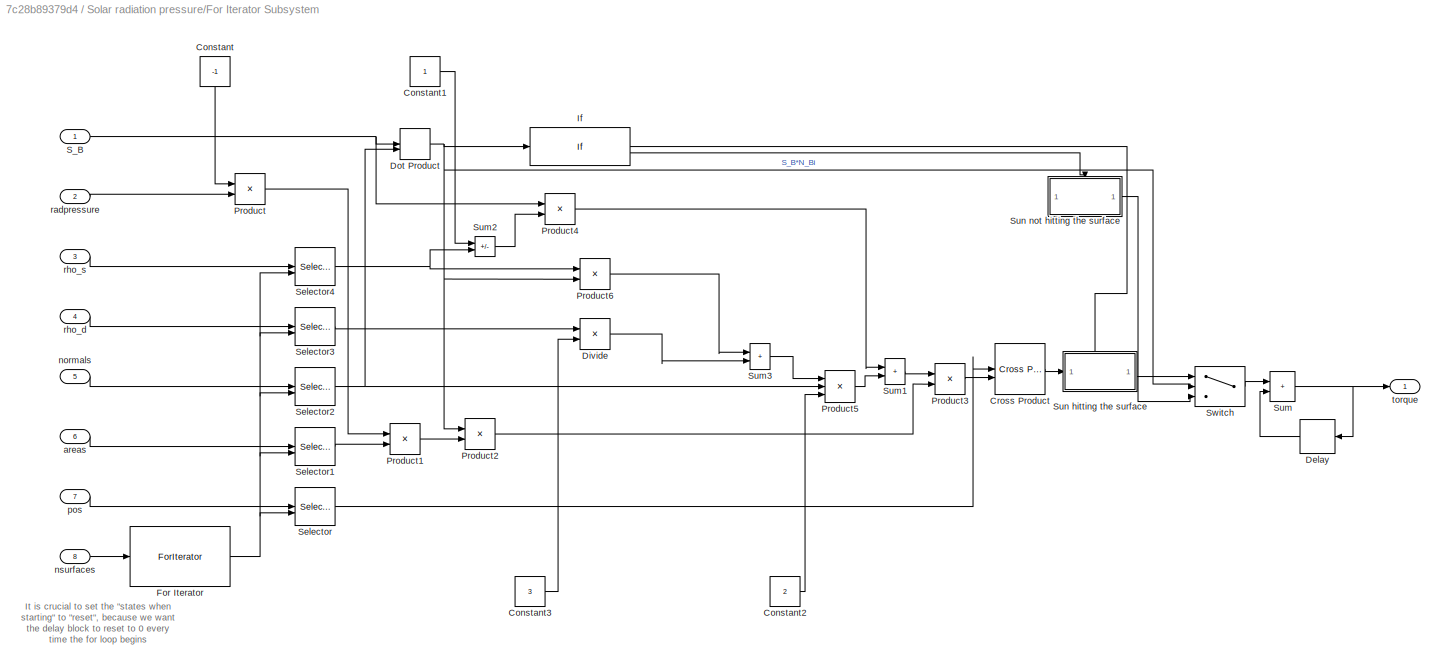
BLOCK [SubSystem] Solar radiation pressure/For Iterator Subsystem
  TreatAsAtomicUnit = on
BLOCK [Constant] Solar radiation pressure/For Iterator Subsystem/Constant
  NameLocation = left
  Value = -1
BLOCK [Constant] Solar radiation pressure/For Iterator Subsystem/Constant1
BLOCK [Constant] Solar radiation pressure/For Iterator Subsystem/Constant2
  Value = 2
BLOCK [Constant] Solar radiation pressure/For Iterator Subsystem/Constant3
  Value = 3
BLOCK [Reference] Solar radiation pressure/For Iterator Subsystem/Cross Product  REF=matrix_library/Cross Product
  LibrarySourceBlock = simulink/Matrix\nOperations/Cross Product
  SourceBlock = matrix_library/Cross Product
  SourceType = CrossProduct
BLOCK [Delay] Solar radiation pressure/For Iterator Subsystem/Delay
  DelayLength = 1
  InputPortMap = u0
  NameLocation = top
BLOCK [Product] Solar radiation pressure/For Iterator Subsystem/Divide
  Inputs = */
BLOCK [DotProduct] Solar radiation pressure/For Iterator Subsystem/Dot Product
  OutDataTypeStr = Inherit: Inherit via internal rule
BLOCK [ForIterator] Solar radiation pressure/For Iterator Subsystem/For Iterator
  IterationSource = external
  ResetStates = reset
BLOCK [If] Solar radiation pressure/For Iterator Subsystem/If
BLOCK [Product] Solar radiation pressure/For Iterator Subsystem/Product
BLOCK [Product] Solar radiation pressure/For Iterator Subsystem/Product1
BLOCK [Product] Solar radiation pressure/For Iterator Subsystem/Product2
BLOCK [Product] Solar radiation pressure/For Iterator Subsystem/Product3
BLOCK [Product] Solar radiation pressure/For Iterator Subsystem/Product4
BLOCK [Product] Solar radiation pressure/For Iterator Subsystem/Product5
  Inputs = 3
BLOCK [Product] Solar radiation pressure/For Iterator Subsystem/Product6
BLOCK [Inport] Solar radiation pressure/For Iterator Subsystem/S_B
BLOCK [Selector] Solar radiation pressure/For Iterator Subsystem/Selector
  IndexOptions = Select all,Index vector (port)
  Indices = [1 3],1
  InputPortWidth = 3
  NumberOfDimensions = 2
  OutputSizes = 1,1
BLOCK [Selector] Solar radiation pressure/For Iterator Subsystem/Selector1
  IndexOptions = Select all,Index vector (port)
  Indices = [1 3],1
  InputPortWidth = 3
  NumberOfDimensions = 2
  OutputSizes = 1,1
BLOCK [Selector] Solar radiation pressure/For Iterator Subsystem/Selector2
  IndexOptions = Select all,Index vector (port)
  Indices = [1 3],1
  InputPortWidth = 3
  NumberOfDimensions = 2
  OutputSizes = 1,1
BLOCK [Selector] Solar radiation pressure/For Iterator Subsystem/Selector3
  IndexOptions = Select all,Index vector (port)
  Indices = [1 3],1
  InputPortWidth = 3
  NumberOfDimensions = 2
  OutputSizes = 1,1
BLOCK [Selector] Solar radiation pressure/For Iterator Subsystem/Selector4
  IndexOptions = Select all,Index vector (port)
  Indices = [1 3],1
  InputPortWidth = 3
  NumberOfDimensions = 2
  OutputSizes = 1,1
BLOCK [Sum] Solar radiation pressure/For Iterator Subsystem/Sum
  IconShape = rectangular
  Inputs = |++
BLOCK [Sum] Solar radiation pressure/For Iterator Subsystem/Sum1
  IconShape = rectangular
  Inputs = |++
BLOCK [Sum] Solar radiation pressure/For Iterator Subsystem/Sum2
  IconShape = rectangular
  Inputs = |+-
BLOCK [Sum] Solar radiation pressure/For Iterator Subsystem/Sum3
  IconShape = rectangular
  Inputs = |++
BLOCK [SubSystem] Solar radiation pressure/For Iterator Subsystem/Sun hitting the surface
  TreatAsAtomicUnit = on
BLOCK [ActionPort] Solar radiation pressure/For Iterator Subsystem/Sun hitting the surface/Action Port
  ActionPortLabel = if(u1 > 0)
BLOCK [Inport] Solar radiation pressure/For Iterator Subsystem/Sun hitting the surface/In1
BLOCK [Outport] Solar radiation pressure/For Iterator Subsystem/Sun hitting the surface/Out1
BLOCK [SubSystem] Solar radiation pressure/For Iterator Subsystem/Sun not hitting the surface
  TreatAsAtomicUnit = on
BLOCK [ActionPort] Solar radiation pressure/For Iterator Subsystem/Sun not hitting the surface/Action Port
  ActionPortLabel = else
BLOCK [Outport] Solar radiation pressure/For Iterator Subsystem/Sun not hitting the surface/Cero
BLOCK [Constant] Solar radiation pressure/For Iterator Subsystem/Sun not hitting the surface/Constant
  Value = 0
BLOCK [Switch] Solar radiation pressure/For Iterator Subsystem/Switch
  Criteria = u2 > Threshold
  InputSameDT = off
  SaturateOnIntegerOverflow = off
BLOCK [Inport] Solar radiation pressure/For Iterator Subsystem/areas
  Port = 6
BLOCK [Inport] Solar radiation pressure/For Iterator Subsystem/normals
  Port = 5
BLOCK [Inport] Solar radiation pressure/For Iterator Subsystem/nsurfaces
  Port = 8
BLOCK [Inport] Solar radiation pressure/For Iterator Subsystem/pos
  Port = 7
BLOCK [Inport] Solar radiation pressure/For Iterator Subsystem/radpressure
  Port = 2
BLOCK [Inport] Solar radiation pressure/For Iterator Subsystem/rho_d
  Port = 4
BLOCK [Inport] Solar radiation pressure/For Iterator Subsystem/rho_s
  Port = 3
BLOCK [Outport] Solar radiation pressure/For Iterator Subsystem/torque
BLOCK [Outport] Solar radiation pressure/Msrp
BLOCK [Reference] Solar radiation pressure/Normalize Vector  REF=vrlib/Utilities/Normalize Vector
  SourceBlock = vrlib/Utilities/Normalize Vector
  SourceType = Normalize Vector
BLOCK [Inport] Solar radiation pressure/S_B
BLOCK [Inport] Solar radiation pressure/areas
  Port = 6
BLOCK [Inport] Solar radiation pressure/normals
  Port = 5
BLOCK [Inport] Solar radiation pressure/nsurfaces
  Port = 8
BLOCK [Inport] Solar radiation pressure/pos
  Port = 7
BLOCK [Inport] Solar radiation pressure/radpressure
  Port = 2
BLOCK [Inport] Solar radiation pressure/rho_d
  Port = 4
BLOCK [Inport] Solar radiation pressure/rho_s
  Port = 3
BLOCK [Sum] Sum
  IconShape = rectangular
  Inputs = |+++++
BLOCK [SubSystem] Sun direction to Earth~satelite
BLOCK [Inport] Sun direction to Earth~satelite/A_BN
BLOCK [Trigonometry] Sun direction to Earth~satelite/Cos
  Operator = cos
BLOCK [Trigonometry] Sun direction to Earth~satelite/Cos1
  Operator = cos
BLOCK [Product] Sun direction to Earth~satelite/Matrix Multiply
BLOCK [Product] Sun direction to Earth~satelite/Matrix Multiply1
  Multiplication = Matrix(*)
BLOCK [Mux] Sun direction to Earth~satelite/Mux
  DisplayOption = bar
  Inputs = 3
BLOCK [Product] Sun direction to Earth~satelite/Product
BLOCK [Product] Sun direction to Earth~satelite/Product1
BLOCK [Product] Sun direction to Earth~satelite/Product2
BLOCK [Inport] Sun direction to Earth~satelite/R_Sun
  Port = 5
BLOCK [Reshape] Sun direction to Earth~satelite/Reshape
  OutputDimensionality = Column vector (2-D)
BLOCK [Outport] Sun direction to Earth~satelite/S_B
BLOCK [Trigonometry] Sun direction to Earth~satelite/Sin
BLOCK [Trigonometry] Sun direction to Earth~satelite/Sin1
BLOCK [Inport] Sun direction to Earth~satelite/epsilon
  Port = 4
BLOCK [Inport] Sun direction to Earth~satelite/n_Sun
  Port = 3
BLOCK [Inport] Sun direction to Earth~satelite/t
  Port = 2
BLOCK [ToWorkspace] To Workspace
  FixptAsFi = on
  MaxDataPoints = inf
  SampleTime = -1
  VariableName = w
BLOCK [ToWorkspace] To Workspace1
  FixptAsFi = on
  MaxDataPoints = inf
  SampleTime = -1
  VariableName = w_d
BLOCK [ToWorkspace] To Workspace10
  FixptAsFi = on
  MaxDataPoints = inf
  SampleTime = -1
  VariableName = A_BL
BLOCK [ToWorkspace] To Workspace11
  FixptAsFi = on
  MaxDataPoints = inf
  SampleTime = -1
  VariableName = A_LN
BLOCK [ToWorkspace] To Workspace12
  FixptAsFi = on
  MaxDataPoints = inf
  SampleTime = -1
  VariableName = Mtotal
BLOCK [ToWorkspace] To Workspace13
  FixptAsFi = on
  MaxDataPoints = inf
  SampleTime = -1
  VariableName = Mgg
BLOCK [ToWorkspace] To Workspace14
  FixptAsFi = on
  MaxDataPoints = inf
  SampleTime = -1
  VariableName = r_B
BLOCK [ToWorkspace] To Workspace15
  FixptAsFi = on
  MaxDataPoints = inf
  SampleTime = -1
  VariableName = r_N
BLOCK [ToWorkspace] To Workspace16
  FixptAsFi = on
  MaxDataPoints = inf
  SampleTime = -1
  VariableName = Mmag
BLOCK [ToWorkspace] To Workspace17
  FixptAsFi = on
  MaxDataPoints = inf
  SampleTime = -1
  VariableName = S_B
BLOCK [ToWorkspace] To Workspace18
  FixptAsFi = on
  MaxDataPoints = inf
  SampleTime = -1
  VariableName = Msrp
BLOCK [ToWorkspace] To Workspace19
  FixptAsFi = on
  MaxDataPoints = inf
  SampleTime = -1
  VariableName = v_B
BLOCK [ToWorkspace] To Workspace2
  FixptAsFi = on
  MaxDataPoints = inf
  SampleTime = -1
  VariableName = time
BLOCK [ToWorkspace] To Workspace20
  FixptAsFi = on
  MaxDataPoints = inf
  SampleTime = -1
  VariableName = Maero
BLOCK [ToWorkspace] To Workspace3
  FixptAsFi = on
  MaxDataPoints = inf
  SampleTime = -1
  VariableName = attitudeError
BLOCK [ToWorkspace] To Workspace4
  FixptAsFi = on
  MaxDataPoints = inf
  SampleTime = -1
  VariableName = A_BN
BLOCK [ToWorkspace] To Workspace5
  FixptAsFi = on
  MaxDataPoints = inf
  SampleTime = -1
  VariableName = w_BL
BLOCK [ToWorkspace] To Workspace6
  FixptAsFi = on
  MaxDataPoints = inf
  SampleTime = -1
  VariableName = q
BLOCK [ToWorkspace] To Workspace7
  FixptAsFi = on
  MaxDataPoints = inf
  SampleTime = -1
  VariableName = Aeuler
BLOCK [ToWorkspace] To Workspace8
  FixptAsFi = on
  MaxDataPoints = inf
  SampleTime = -1
  VariableName = pointingError
BLOCK [ToWorkspace] To Workspace9
  FixptAsFi = on
  MaxDataPoints = inf
  SampleTime = -1
  VariableName = gamma
ANNOTATION Air drag/For Iterator Subsystem: It is crucial to set the "states when starting" to "reset", because we want the delay block to reset to 0 every time the for loop begins
ANNOTATION Solar radiation pressure/For Iterator Subsystem: It is crucial to set the "states when starting" to "reset", because we want the delay block to reset to 0 every time the for loop begins
LINE Additional torque:1 -> Sum:1
LINE Air drag/C_D:1 -> Air drag/For Iterator Subsystem:4
LINE Air drag/For Iterator Subsystem/Air hitting the surface/In1:1 -> Air drag/For Iterator Subsystem/Air hitting the surface/Out1:1
LINE Air drag/For Iterator Subsystem/Air hitting the surface:1 -> Air drag/For Iterator Subsystem/Switch:1
LINE Air drag/For Iterator Subsystem/Air not hitting the surface/Constant:1 -> Air drag/For Iterator Subsystem/Air not hitting the surface/Cero:1
LINE Air drag/For Iterator Subsystem/Air not hitting the surface:1 -> Air drag/For Iterator Subsystem/Switch:3
LINE Air drag/For Iterator Subsystem/C_D:1 -> Air drag/For Iterator Subsystem/Product1:2
LINE Air drag/For Iterator Subsystem/Constant:1 -> Air drag/For Iterator Subsystem/Product:1
LINE Air drag/For Iterator Subsystem/Cross Product1:1 -> Air drag/For Iterator Subsystem/Sum2:2
LINE Air drag/For Iterator Subsystem/Cross Product:1 -> Air drag/For Iterator Subsystem/Air hitting the surface:1
LINE Air drag/For Iterator Subsystem/Delay:1 -> Air drag/For Iterator Subsystem/Sum:2
NET Air drag/For Iterator Subsystem/Dot Product1:1 -> Air drag/For Iterator Subsystem/If:1, Air drag/For Iterator Subsystem/Product5:1, Air drag/For Iterator Subsystem/Switch:2
LINE Air drag/For Iterator Subsystem/Dot Product:1 -> Air drag/For Iterator Subsystem/Product2:1
NET Air drag/For Iterator Subsystem/For Iterator:1 -> Air drag/For Iterator Subsystem/Selector1:2, Air drag/For Iterator Subsystem/Selector2:2, Air drag/For Iterator Subsystem/Selector:2
LINE Air drag/For Iterator Subsystem/If:1 -> Air drag/For Iterator Subsystem/Air hitting the surface:ifaction
LINE Air drag/For Iterator Subsystem/If:2 -> Air drag/For Iterator Subsystem/Air not hitting the surface:ifaction
NET Air drag/For Iterator Subsystem/Normalize Vector:1 -> Air drag/For Iterator Subsystem/Dot Product1:1, Air drag/For Iterator Subsystem/Product4:1
LINE Air drag/For Iterator Subsystem/Product1:1 -> Air drag/For Iterator Subsystem/Product2:2
LINE Air drag/For Iterator Subsystem/Product2:1 -> Air drag/For Iterator Subsystem/Product4:2
LINE Air drag/For Iterator Subsystem/Product4:1 -> Air drag/For Iterator Subsystem/Product5:2
LINE Air drag/For Iterator Subsystem/Product5:1 -> Air drag/For Iterator Subsystem/Product6:1
LINE Air drag/For Iterator Subsystem/Product6:1 -> Air drag/For Iterator Subsystem/Cross Product:2
LINE Air drag/For Iterator Subsystem/Product:1 -> Air drag/For Iterator Subsystem/Product1:1
LINE Air drag/For Iterator Subsystem/Selector1:1 -> Air drag/For Iterator Subsystem/Product6:2
LINE Air drag/For Iterator Subsystem/Selector2:1 -> Air drag/For Iterator Subsystem/Dot Product1:2
NET Air drag/For Iterator Subsystem/Selector:1 -> Air drag/For Iterator Subsystem/Cross Product1:2, Air drag/For Iterator Subsystem/Cross Product:1
NET Air drag/For Iterator Subsystem/Sum2:1 -> Air drag/For Iterator Subsystem/Dot Product:1, Air drag/For Iterator Subsystem/Dot Product:2, Air drag/For Iterator Subsystem/Normalize Vector:1
NET Air drag/For Iterator Subsystem/Sum:1 -> Air drag/For Iterator Subsystem/Delay:1, Air drag/For Iterator Subsystem/torque:1
LINE Air drag/For Iterator Subsystem/Switch:1 -> Air drag/For Iterator Subsystem/Sum:1
LINE Air drag/For Iterator Subsystem/areas:1 -> Air drag/For Iterator Subsystem/Selector1:1
LINE Air drag/For Iterator Subsystem/density:1 -> Air drag/For Iterator Subsystem/Product:2
LINE Air drag/For Iterator Subsystem/km//s -> m//s:1 -> Air drag/For Iterator Subsystem/Sum2:1
LINE Air drag/For Iterator Subsystem/normals:1 -> Air drag/For Iterator Subsystem/Selector2:1
LINE Air drag/For Iterator Subsystem/nsurfaces:1 -> Air drag/For Iterator Subsystem/For Iterator:1
LINE Air drag/For Iterator Subsystem/pos:1 -> Air drag/For Iterator Subsystem/Selector:1
LINE Air drag/For Iterator Subsystem/v_B:1 -> Air drag/For Iterator Subsystem/km//s -> m//s:1
LINE Air drag/For Iterator Subsystem/w_B:1 -> Air drag/For Iterator Subsystem/Cross Product1:1
LINE Air drag/For Iterator Subsystem:1 -> Air drag/Maero:1
LINE Air drag/areas:1 -> Air drag/For Iterator Subsystem:6
LINE Air drag/density:1 -> Air drag/For Iterator Subsystem:3
LINE Air drag/normals:1 -> Air drag/For Iterator Subsystem:5
LINE Air drag/nsurfaces:1 -> Air drag/For Iterator Subsystem:8
LINE Air drag/pos:1 -> Air drag/For Iterator Subsystem:7
LINE Air drag/v_B:1 -> Air drag/For Iterator Subsystem:1
LINE Air drag/w_B:1 -> Air drag/For Iterator Subsystem:2
LINE Air drag:1 -> To Workspace20:1
LINE Attitude dynamics/Cross Product:1 -> Attitude dynamics/Sum:1
NET Attitude dynamics/Demux1:1 -> Attitude dynamics/Cross Product:2, Attitude dynamics/Product:2, Attitude dynamics/Reshape:1
LINE Attitude dynamics/Demux1:2 -> Attitude dynamics/Matrix Multiply:1
LINE Attitude dynamics/Divide:1 -> Attitude dynamics/Mux:2
LINE Attitude dynamics/External torque:1 -> Attitude dynamics/Sum:2
LINE Attitude dynamics/Inertia matrix:1 -> Attitude dynamics/Product:1
LINE Attitude dynamics/Integrator:1 -> Attitude dynamics/Demux1:1
LINE Attitude dynamics/Inverted Inertia:1 -> Attitude dynamics/Product1:1
LINE Attitude dynamics/Matrix Multiply:1 -> Attitude dynamics/Sum1:2
NET Attitude dynamics/Mux:1 -> Attitude dynamics/Integrator:1, Attitude dynamics/w_d:1
LINE Attitude dynamics/Product1:1 -> Attitude dynamics/Mux:1
LINE Attitude dynamics/Product:1 -> Attitude dynamics/Sum1:1
LINE Attitude dynamics/Reshape:1 -> Attitude dynamics/w:1
LINE Attitude dynamics/Sum1:1 -> Attitude dynamics/Cross Product:1
LINE Attitude dynamics/Sum:1 -> Attitude dynamics/Product1:2
LINE Attitude dynamics/Wheel axis:1 -> Attitude dynamics/Matrix Multiply:3
NET Attitude dynamics/Wheel inertia:1 -> Attitude dynamics/Divide:2, Attitude dynamics/Matrix Multiply:2
NET Attitude dynamics/Wheel torque:1 -> Attitude dynamics/Divide:1, Attitude dynamics/Sum:3
LINE Attitude dynamics/w0, wr0:1 -> Attitude dynamics/Integrator:2
NET Attitude dynamics:1 -> Air drag:2, Attitude error:1, DCM:1, Euler angles 312+313 :1, Pointing error:1, Quaternion:1, To Workspace:1
LINE Attitude dynamics:2 -> To Workspace1:1
LINE Attitude error/A1rotation/Constant1:1 -> Attitude error/A1rotation/Vector Concatenate:2
LINE Attitude error/A1rotation/Constant:1 -> Attitude error/A1rotation/Vector Concatenate:1
LINE Attitude error/A1rotation/Cos:1 -> Attitude error/A1rotation/Vector Concatenate:5
NET Attitude error/A1rotation/Matrix Concatenate:1 -> Attitude error/A1rotation/A1incli:1, Attitude error/A1rotation/Display:1
LINE Attitude error/A1rotation/Multiply:1 -> Attitude error/A1rotation/Vector Concatenate:4
LINE Attitude error/A1rotation/Selector1:1 -> Attitude error/A1rotation/Matrix Concatenate:2
LINE Attitude error/A1rotation/Selector2:1 -> Attitude error/A1rotation/Matrix Concatenate:3
LINE Attitude error/A1rotation/Selector:1 -> Attitude error/A1rotation/Matrix Concatenate:1
NET Attitude error/A1rotation/Sin:1 -> Attitude error/A1rotation/Multiply:1, Attitude error/A1rotation/Vector Concatenate:3
NET Attitude error/A1rotation/Vector Concatenate:1 -> Attitude error/A1rotation/Selector1:1, Attitude error/A1rotation/Selector2:1, Attitude error/A1rotation/Selector:1
NET Attitude error/A1rotation/angle:1 -> Attitude error/A1rotation/Cos:1, Attitude error/A1rotation/Sin:1
LINE Attitude error/A1rotation:1 -> Attitude error/Matrix Multiply2:2
LINE Attitude error/A3rotation/Constant1:1 -> Attitude error/A3rotation/Vector Concatenate:2
LINE Attitude error/A3rotation/Constant:1 -> Attitude error/A3rotation/Vector Concatenate:1
LINE Attitude error/A3rotation/Cos:1 -> Attitude error/A3rotation/Vector Concatenate:5
NET Attitude error/A3rotation/Matrix Concatenate:1 -> Attitude error/A3rotation/A3theta:1, Attitude error/A3rotation/Display:1
LINE Attitude error/A3rotation/Multiply:1 -> Attitude error/A3rotation/Vector Concatenate:4
LINE Attitude error/A3rotation/Selector1:1 -> Attitude error/A3rotation/Matrix Concatenate:2
LINE Attitude error/A3rotation/Selector2:1 -> Attitude error/A3rotation/Matrix Concatenate:3
LINE Attitude error/A3rotation/Selector:1 -> Attitude error/A3rotation/Matrix Concatenate:1
NET Attitude error/A3rotation/Sin:1 -> Attitude error/A3rotation/Multiply:1, Attitude error/A3rotation/Vector Concatenate:3
NET Attitude error/A3rotation/Vector Concatenate:1 -> Attitude error/A3rotation/Selector1:1, Attitude error/A3rotation/Selector2:1, Attitude error/A3rotation/Selector:1
NET Attitude error/A3rotation/angle:1 -> Attitude error/A3rotation/Cos:1, Attitude error/A3rotation/Sin:1
LINE Attitude error/A3rotation:1 -> Attitude error/Matrix Multiply2:1
LINE Attitude error/A_BN:1 -> Attitude error/Matrix Multiply:1
LINE Attitude error/Constant:1 -> Attitude error/Matrix Multiply3:2
LINE Attitude error/IdentityMatrix:1 -> Attitude error/Sum:1
LINE Attitude error/Matrix Multiply1:1 -> Attitude error/Sum2:1
NET Attitude error/Matrix Multiply2:1 -> Attitude error/A_LN:1, Attitude error/Transpose:1
LINE Attitude error/Matrix Multiply3:1 -> Attitude error/Matrix Multiply1:2
NET Attitude error/Matrix Multiply:1 -> Attitude error/A_BL:1, Attitude error/Matrix Multiply1:1, Attitude error/Sum:2
LINE Attitude error/Selector1:1 -> Attitude error/Sum1:2
LINE Attitude error/Selector2:1 -> Attitude error/Sum1:3
LINE Attitude error/Selector:1 -> Attitude error/Sum1:1
NET Attitude error/Sum1:1 -> Attitude error/Scope:1, Attitude error/attitudeError:1
LINE Attitude error/Sum2:1 -> Attitude error/w_BL:1
NET Attitude error/Sum:1 -> Attitude error/Selector1:1, Attitude error/Selector2:1, Attitude error/Selector:1
LINE Attitude error/Transpose:1 -> Attitude error/Matrix Multiply:2
LINE Attitude error/inclination:1 -> Attitude error/A1rotation:1
LINE Attitude error/n:1 -> Attitude error/Matrix Multiply3:1
LINE Attitude error/theta:1 -> Attitude error/A3rotation:1
LINE Attitude error/w_B:1 -> Attitude error/Sum2:2
LINE Attitude error:1 -> To Workspace3:1
NET Attitude error:2 -> Gravity gradient perturbation:1, To Workspace10:1
LINE Attitude error:3 -> To Workspace5:1
LINE Attitude error:4 -> To Workspace11:1
LINE Clock1:1 -> Sun direction to Earth~satelite:2
LINE Clock2:1 -> Magnetic perturbation:4
LINE Clock:1 -> To Workspace2:1
LINE Constant10:1 -> Attitude dynamics:5
LINE Constant11:1 -> Attitude dynamics:6
LINE Constant12:1 -> Attitude dynamics:7
LINE Constant13:1 -> Gravity gradient perturbation:2
LINE Constant14:1 -> Gravity gradient perturbation:3
LINE Constant15:1 -> Orbit dynamics:1
LINE Constant16:1 -> Orbit dynamics:2
LINE Constant17:1 -> Orbit dynamics:3
LINE Constant18:1 -> Sun direction to Earth~satelite:3
LINE Constant19:1 -> Orbit dynamics:4
LINE Constant1:1 -> Quaternion:2
LINE Constant20:1 -> Sun direction to Earth~satelite:4
LINE Constant21:1 -> Sun direction to Earth~satelite:5
LINE Constant22:1 -> Earth direction:3
LINE Constant23:1 -> Magnetic perturbation:1
LINE Constant24:1 -> Magnetic perturbation:3
LINE Constant25:1 -> Magnetic perturbation:5
LINE Constant26:1 -> Magnetic perturbation:7
LINE Constant27:1 -> Magnetic perturbation:9
LINE Constant28:1 -> Solar radiation pressure:2
LINE Constant29:1 -> Solar radiation pressure:3
LINE Constant2:1 -> Euler angles 312+313 :2
LINE Constant30:1 -> Solar radiation pressure:4
LINE Constant31:1 -> Solar radiation pressure:5
LINE Constant32:1 -> Solar radiation pressure:6
LINE Constant33:1 -> Solar radiation pressure:7
LINE Constant34:1 -> Solar radiation pressure:8
LINE Constant35:1 -> Relative velocity:2
LINE Constant36:1 -> Air drag:3
LINE Constant37:1 -> Air drag:4
LINE Constant38:1 -> Air drag:5
LINE Constant39:1 -> Air drag:6
LINE Constant3:1 -> Euler angles 312+313 :3
LINE Constant40:1 -> Air drag:7
LINE Constant41:1 -> Air drag:8
LINE Constant4:1 -> Pointing error:2
LINE Constant5:1 -> Attitude error:4
LINE Constant6:1 -> Attitude error:5
LINE Constant7:1 -> Attitude dynamics:2
LINE Constant8:1 -> Attitude dynamics:1
LINE Constant9:1 -> Attitude dynamics:4
LINE Constant:1 -> DCM:2
LINE DCM/3x3 Skew-symmetric matrix/Constant:1 -> DCM/3x3 Skew-symmetric matrix/Vector Concatenate:1
LINE DCM/3x3 Skew-symmetric matrix/Matrix Concatenate:1 -> DCM/3x3 Skew-symmetric matrix/Transpose:1
LINE DCM/3x3 Skew-symmetric matrix/Multiply:1 -> DCM/3x3 Skew-symmetric matrix/Vector Concatenate:3
LINE DCM/3x3 Skew-symmetric matrix/Selector1:1 -> DCM/3x3 Skew-symmetric matrix/Matrix Concatenate:1
LINE DCM/3x3 Skew-symmetric matrix/Selector2:1 -> DCM/3x3 Skew-symmetric matrix/Matrix Concatenate:3
LINE DCM/3x3 Skew-symmetric matrix/Selector:1 -> DCM/3x3 Skew-symmetric matrix/Matrix Concatenate:2
NET DCM/3x3 Skew-symmetric matrix/Transpose:1 -> DCM/3x3 Skew-symmetric matrix/Display:1, DCM/3x3 Skew-symmetric matrix/w^:1
NET DCM/3x3 Skew-symmetric matrix/Vector Concatenate:1 -> DCM/3x3 Skew-symmetric matrix/Selector1:1, DCM/3x3 Skew-symmetric matrix/Selector2:1, DCM/3x3 Skew-symmetric matrix/Selector:1
NET DCM/3x3 Skew-symmetric matrix/w:1 -> DCM/3x3 Skew-symmetric matrix/Multiply:1, DCM/3x3 Skew-symmetric matrix/Scope:1, DCM/3x3 Skew-symmetric matrix/Vector Concatenate:2
LINE DCM/3x3 Skew-symmetric matrix:1 -> DCM/Multiply:1
LINE DCM/A0:1 -> DCM/Integrator:2
NET DCM/Integrator:1 -> DCM/Matrix Multiply2:2, DCM/Multiply1:1, DCM/Multiply2:1, DCM/Transpose:1
LINE DCM/Matrix Multiply1:1 -> DCM/Matrix Multiply2:1
LINE DCM/Matrix Multiply2:1 -> DCM/Sum:2
LINE DCM/Matrix Multiply:1 -> DCM/Integrator:1
LINE DCM/Multiply1:1 -> DCM/Sum:1
LINE DCM/Multiply2:1 -> DCM/Matrix Multiply1:1
LINE DCM/Multiply:1 -> DCM/Matrix Multiply:1
NET DCM/Sum:1 -> DCM/A_BN:1, DCM/Matrix Multiply:2
LINE DCM/Transpose:1 -> DCM/Matrix Multiply1:2
LINE DCM/w:1 -> DCM/3x3 Skew-symmetric matrix:1
NET DCM:1 -> Attitude error:2, Earth direction:1, Magnetic perturbation:2, Relative velocity:3, Sun direction to Earth~satelite:1, To Workspace4:1
LINE Earth direction/A_BN:1 -> Earth direction/Matrix Multiply1:1
LINE Earth direction/Cos1:1 -> Earth direction/Product:2
LINE Earth direction/Cos:1 -> Earth direction/Mux:1
LINE Earth direction/Matrix Multiply1:1 -> Earth direction/r_B:1
LINE Earth direction/Matrix Multiply:1 -> Earth direction/Reshape:1
LINE Earth direction/Mux:1 -> Earth direction/Matrix Multiply:1
LINE Earth direction/Product1:1 -> Earth direction/Mux:3
LINE Earth direction/Product:1 -> Earth direction/Mux:2
NET Earth direction/Reshape:1 -> Earth direction/Matrix Multiply1:2, Earth direction/Scope:1, Earth direction/r_N:1
LINE Earth direction/Sin1:1 -> Earth direction/Product1:2
NET Earth direction/Sin:1 -> Earth direction/Product1:1, Earth direction/Product:1
NET Earth direction/inclination:1 -> Earth direction/Cos1:1, Earth direction/Sin1:1
LINE Earth direction/r:1 -> Earth direction/Matrix Multiply:2
NET Earth direction/theta:1 -> Earth direction/Cos:1, Earth direction/Sin:1
NET Earth direction:1 -> Magnetic perturbation:6, Relative velocity:1, To Workspace15:1
LINE Earth direction:2 -> To Workspace14:1
NET Euler angles 312+313 /Abs:1 -> Euler angles 312+313 /If:1, Euler angles 312+313 /Switch:2
LINE Euler angles 312+313 /If Action Subsystem/A1rotation/Constant1:1 -> Euler angles 312+313 /If Action Subsystem/A1rotation/Vector Concatenate:2
LINE Euler angles 312+313 /If Action Subsystem/A1rotation/Constant:1 -> Euler angles 312+313 /If Action Subsystem/A1rotation/Vector Concatenate:1
LINE Euler angles 312+313 /If Action Subsystem/A1rotation/Cos:1 -> Euler angles 312+313 /If Action Subsystem/A1rotation/Vector Concatenate:5
NET Euler angles 312+313 /If Action Subsystem/A1rotation/Matrix Concatenate:1 -> Euler angles 312+313 /If Action Subsystem/A1rotation/Display:1, Euler angles 312+313 /If Action Subsystem/A1rotation/matrix:1
LINE Euler angles 312+313 /If Action Subsystem/A1rotation/Multiply:1 -> Euler angles 312+313 /If Action Subsystem/A1rotation/Vector Concatenate:4
LINE Euler angles 312+313 /If Action Subsystem/A1rotation/Selector1:1 -> Euler angles 312+313 /If Action Subsystem/A1rotation/Matrix Concatenate:2
LINE Euler angles 312+313 /If Action Subsystem/A1rotation/Selector2:1 -> Euler angles 312+313 /If Action Subsystem/A1rotation/Matrix Concatenate:3
LINE Euler angles 312+313 /If Action Subsystem/A1rotation/Selector:1 -> Euler angles 312+313 /If Action Subsystem/A1rotation/Matrix Concatenate:1
NET Euler angles 312+313 /If Action Subsystem/A1rotation/Sin:1 -> Euler angles 312+313 /If Action Subsystem/A1rotation/Multiply:1, Euler angles 312+313 /If Action Subsystem/A1rotation/Vector Concatenate:3
NET Euler angles 312+313 /If Action Subsystem/A1rotation/Vector Concatenate:1 -> Euler angles 312+313 /If Action Subsystem/A1rotation/Selector1:1, Euler angles 312+313 /If Action Subsystem/A1rotation/Selector2:1, Euler angles 312+313 /If Action Subsystem/A1rotation/Selector:1
NET Euler angles 312+313 /If Action Subsystem/A1rotation/angle:1 -> Euler angles 312+313 /If Action Subsystem/A1rotation/Cos:1, Euler angles 312+313 /If Action Subsystem/A1rotation/Sin:1
LINE Euler angles 312+313 /If Action Subsystem/A1rotation:1 -> Euler angles 312+313 /If Action Subsystem/Matrix Multiply:2
LINE Euler angles 312+313 /If Action Subsystem/A2rotation/Constant1:1 -> Euler angles 312+313 /If Action Subsystem/A2rotation/Vector Concatenate:2
LINE Euler angles 312+313 /If Action Subsystem/A2rotation/Constant:1 -> Euler angles 312+313 /If Action Subsystem/A2rotation/Vector Concatenate:1
LINE Euler angles 312+313 /If Action Subsystem/A2rotation/Cos:1 -> Euler angles 312+313 /If Action Subsystem/A2rotation/Vector Concatenate:5
NET Euler angles 312+313 /If Action Subsystem/A2rotation/Matrix Concatenate:1 -> Euler angles 312+313 /If Action Subsystem/A2rotation/Display:1, Euler angles 312+313 /If Action Subsystem/A2rotation/matrix:1
LINE Euler angles 312+313 /If Action Subsystem/A2rotation/Multiply:1 -> Euler angles 312+313 /If Action Subsystem/A2rotation/Vector Concatenate:4
LINE Euler angles 312+313 /If Action Subsystem/A2rotation/Selector1:1 -> Euler angles 312+313 /If Action Subsystem/A2rotation/Matrix Concatenate:2
LINE Euler angles 312+313 /If Action Subsystem/A2rotation/Selector2:1 -> Euler angles 312+313 /If Action Subsystem/A2rotation/Matrix Concatenate:3
LINE Euler angles 312+313 /If Action Subsystem/A2rotation/Selector:1 -> Euler angles 312+313 /If Action Subsystem/A2rotation/Matrix Concatenate:1
NET Euler angles 312+313 /If Action Subsystem/A2rotation/Sin:1 -> Euler angles 312+313 /If Action Subsystem/A2rotation/Multiply:1, Euler angles 312+313 /If Action Subsystem/A2rotation/Vector Concatenate:3
NET Euler angles 312+313 /If Action Subsystem/A2rotation/Vector Concatenate:1 -> Euler angles 312+313 /If Action Subsystem/A2rotation/Selector1:1, Euler angles 312+313 /If Action Subsystem/A2rotation/Selector2:1, Euler angles 312+313 /If Action Subsystem/A2rotation/Selector:1
NET Euler angles 312+313 /If Action Subsystem/A2rotation/angle:1 -> Euler angles 312+313 /If Action Subsystem/A2rotation/Cos:1, Euler angles 312+313 /If Action Subsystem/A2rotation/Sin:1
LINE Euler angles 312+313 /If Action Subsystem/A2rotation:1 -> Euler angles 312+313 /If Action Subsystem/Matrix Multiply:1
LINE Euler angles 312+313 /If Action Subsystem/A3rotation/Constant1:1 -> Euler angles 312+313 /If Action Subsystem/A3rotation/Vector Concatenate:2
LINE Euler angles 312+313 /If Action Subsystem/A3rotation/Constant:1 -> Euler angles 312+313 /If Action Subsystem/A3rotation/Vector Concatenate:1
LINE Euler angles 312+313 /If Action Subsystem/A3rotation/Cos:1 -> Euler angles 312+313 /If Action Subsystem/A3rotation/Vector Concatenate:5
NET Euler angles 312+313 /If Action Subsystem/A3rotation/Matrix Concatenate:1 -> Euler angles 312+313 /If Action Subsystem/A3rotation/Display:1, Euler angles 312+313 /If Action Subsystem/A3rotation/matrix:1
LINE Euler angles 312+313 /If Action Subsystem/A3rotation/Multiply:1 -> Euler angles 312+313 /If Action Subsystem/A3rotation/Vector Concatenate:4
LINE Euler angles 312+313 /If Action Subsystem/A3rotation/Selector1:1 -> Euler angles 312+313 /If Action Subsystem/A3rotation/Matrix Concatenate:2
LINE Euler angles 312+313 /If Action Subsystem/A3rotation/Selector2:1 -> Euler angles 312+313 /If Action Subsystem/A3rotation/Matrix Concatenate:3
LINE Euler angles 312+313 /If Action Subsystem/A3rotation/Selector:1 -> Euler angles 312+313 /If Action Subsystem/A3rotation/Matrix Concatenate:1
NET Euler angles 312+313 /If Action Subsystem/A3rotation/Sin:1 -> Euler angles 312+313 /If Action Subsystem/A3rotation/Multiply:1, Euler angles 312+313 /If Action Subsystem/A3rotation/Vector Concatenate:3
NET Euler angles 312+313 /If Action Subsystem/A3rotation/Vector Concatenate:1 -> Euler angles 312+313 /If Action Subsystem/A3rotation/Selector1:1, Euler angles 312+313 /If Action Subsystem/A3rotation/Selector2:1, Euler angles 312+313 /If Action Subsystem/A3rotation/Selector:1
NET Euler angles 312+313 /If Action Subsystem/A3rotation/angle:1 -> Euler angles 312+313 /If Action Subsystem/A3rotation/Cos:1, Euler angles 312+313 /If Action Subsystem/A3rotation/Sin:1
LINE Euler angles 312+313 /If Action Subsystem/A3rotation:1 -> Euler angles 312+313 /If Action Subsystem/Matrix Multiply:3
LINE Euler angles 312+313 /If Action Subsystem/Demux:1 -> Euler angles 312+313 /If Action Subsystem/A3rotation:1
LINE Euler angles 312+313 /If Action Subsystem/Demux:2 -> Euler angles 312+313 /If Action Subsystem/A1rotation:1
LINE Euler angles 312+313 /If Action Subsystem/Demux:3 -> Euler angles 312+313 /If Action Subsystem/A2rotation:1
NET Euler angles 312+313 /If Action Subsystem/Matrix Multiply:1 -> Euler angles 312+313 /If Action Subsystem/A:1, Euler angles 312+313 /If Action Subsystem/Display:1
LINE Euler angles 312+313 /If Action Subsystem/euler312:1 -> Euler angles 312+313 /If Action Subsystem/Demux:1
LINE Euler angles 312+313 /If Action Subsystem1/A1rotation/Constant1:1 -> Euler angles 312+313 /If Action Subsystem1/A1rotation/Vector Concatenate:2
LINE Euler angles 312+313 /If Action Subsystem1/A1rotation/Constant:1 -> Euler angles 312+313 /If Action Subsystem1/A1rotation/Vector Concatenate:1
LINE Euler angles 312+313 /If Action Subsystem1/A1rotation/Cos:1 -> Euler angles 312+313 /If Action Subsystem1/A1rotation/Vector Concatenate:5
NET Euler angles 312+313 /If Action Subsystem1/A1rotation/Matrix Concatenate:1 -> Euler angles 312+313 /If Action Subsystem1/A1rotation/Display:1, Euler angles 312+313 /If Action Subsystem1/A1rotation/matrix:1
LINE Euler angles 312+313 /If Action Subsystem1/A1rotation/Multiply:1 -> Euler angles 312+313 /If Action Subsystem1/A1rotation/Vector Concatenate:4
LINE Euler angles 312+313 /If Action Subsystem1/A1rotation/Selector1:1 -> Euler angles 312+313 /If Action Subsystem1/A1rotation/Matrix Concatenate:2
LINE Euler angles 312+313 /If Action Subsystem1/A1rotation/Selector2:1 -> Euler angles 312+313 /If Action Subsystem1/A1rotation/Matrix Concatenate:3
LINE Euler angles 312+313 /If Action Subsystem1/A1rotation/Selector:1 -> Euler angles 312+313 /If Action Subsystem1/A1rotation/Matrix Concatenate:1
NET Euler angles 312+313 /If Action Subsystem1/A1rotation/Sin:1 -> Euler angles 312+313 /If Action Subsystem1/A1rotation/Multiply:1, Euler angles 312+313 /If Action Subsystem1/A1rotation/Vector Concatenate:3
NET Euler angles 312+313 /If Action Subsystem1/A1rotation/Vector Concatenate:1 -> Euler angles 312+313 /If Action Subsystem1/A1rotation/Selector1:1, Euler angles 312+313 /If Action Subsystem1/A1rotation/Selector2:1, Euler angles 312+313 /If Action Subsystem1/A1rotation/Selector:1
NET Euler angles 312+313 /If Action Subsystem1/A1rotation/angle:1 -> Euler angles 312+313 /If Action Subsystem1/A1rotation/Cos:1, Euler angles 312+313 /If Action Subsystem1/A1rotation/Sin:1
LINE Euler angles 312+313 /If Action Subsystem1/A1rotation:1 -> Euler angles 312+313 /If Action Subsystem1/Matrix Multiply:2
LINE Euler angles 312+313 /If Action Subsystem1/A3rotation/Constant1:1 -> Euler angles 312+313 /If Action Subsystem1/A3rotation/Vector Concatenate:2
LINE Euler angles 312+313 /If Action Subsystem1/A3rotation/Constant:1 -> Euler angles 312+313 /If Action Subsystem1/A3rotation/Vector Concatenate:1
LINE Euler angles 312+313 /If Action Subsystem1/A3rotation/Cos:1 -> Euler angles 312+313 /If Action Subsystem1/A3rotation/Vector Concatenate:5
NET Euler angles 312+313 /If Action Subsystem1/A3rotation/Matrix Concatenate:1 -> Euler angles 312+313 /If Action Subsystem1/A3rotation/Display:1, Euler angles 312+313 /If Action Subsystem1/A3rotation/matrix:1
LINE Euler angles 312+313 /If Action Subsystem1/A3rotation/Multiply:1 -> Euler angles 312+313 /If Action Subsystem1/A3rotation/Vector Concatenate:4
LINE Euler angles 312+313 /If Action Subsystem1/A3rotation/Selector1:1 -> Euler angles 312+313 /If Action Subsystem1/A3rotation/Matrix Concatenate:2
LINE Euler angles 312+313 /If Action Subsystem1/A3rotation/Selector2:1 -> Euler angles 312+313 /If Action Subsystem1/A3rotation/Matrix Concatenate:3
LINE Euler angles 312+313 /If Action Subsystem1/A3rotation/Selector:1 -> Euler angles 312+313 /If Action Subsystem1/A3rotation/Matrix Concatenate:1
NET Euler angles 312+313 /If Action Subsystem1/A3rotation/Sin:1 -> Euler angles 312+313 /If Action Subsystem1/A3rotation/Multiply:1, Euler angles 312+313 /If Action Subsystem1/A3rotation/Vector Concatenate:3
NET Euler angles 312+313 /If Action Subsystem1/A3rotation/Vector Concatenate:1 -> Euler angles 312+313 /If Action Subsystem1/A3rotation/Selector1:1, Euler angles 312+313 /If Action Subsystem1/A3rotation/Selector2:1, Euler angles 312+313 /If Action Subsystem1/A3rotation/Selector:1
NET Euler angles 312+313 /If Action Subsystem1/A3rotation/angle:1 -> Euler angles 312+313 /If Action Subsystem1/A3rotation/Cos:1, Euler angles 312+313 /If Action Subsystem1/A3rotation/Sin:1
LINE Euler angles 312+313 /If Action Subsystem1/A3rotation1/Constant1:1 -> Euler angles 312+313 /If Action Subsystem1/A3rotation1/Vector Concatenate:2
LINE Euler angles 312+313 /If Action Subsystem1/A3rotation1/Constant:1 -> Euler angles 312+313 /If Action Subsystem1/A3rotation1/Vector Concatenate:1
LINE Euler angles 312+313 /If Action Subsystem1/A3rotation1/Cos:1 -> Euler angles 312+313 /If Action Subsystem1/A3rotation1/Vector Concatenate:5
NET Euler angles 312+313 /If Action Subsystem1/A3rotation1/Matrix Concatenate:1 -> Euler angles 312+313 /If Action Subsystem1/A3rotation1/Display:1, Euler angles 312+313 /If Action Subsystem1/A3rotation1/matrix:1
LINE Euler angles 312+313 /If Action Subsystem1/A3rotation1/Multiply:1 -> Euler angles 312+313 /If Action Subsystem1/A3rotation1/Vector Concatenate:4
LINE Euler angles 312+313 /If Action Subsystem1/A3rotation1/Selector1:1 -> Euler angles 312+313 /If Action Subsystem1/A3rotation1/Matrix Concatenate:2
LINE Euler angles 312+313 /If Action Subsystem1/A3rotation1/Selector2:1 -> Euler angles 312+313 /If Action Subsystem1/A3rotation1/Matrix Concatenate:3
LINE Euler angles 312+313 /If Action Subsystem1/A3rotation1/Selector:1 -> Euler angles 312+313 /If Action Subsystem1/A3rotation1/Matrix Concatenate:1
NET Euler angles 312+313 /If Action Subsystem1/A3rotation1/Sin:1 -> Euler angles 312+313 /If Action Subsystem1/A3rotation1/Multiply:1, Euler angles 312+313 /If Action Subsystem1/A3rotation1/Vector Concatenate:3
NET Euler angles 312+313 /If Action Subsystem1/A3rotation1/Vector Concatenate:1 -> Euler angles 312+313 /If Action Subsystem1/A3rotation1/Selector1:1, Euler angles 312+313 /If Action Subsystem1/A3rotation1/Selector2:1, Euler angles 312+313 /If Action Subsystem1/A3rotation1/Selector:1
NET Euler angles 312+313 /If Action Subsystem1/A3rotation1/angle:1 -> Euler angles 312+313 /If Action Subsystem1/A3rotation1/Cos:1, Euler angles 312+313 /If Action Subsystem1/A3rotation1/Sin:1
LINE Euler angles 312+313 /If Action Subsystem1/A3rotation1:1 -> Euler angles 312+313 /If Action Subsystem1/Matrix Multiply:1
LINE Euler angles 312+313 /If Action Subsystem1/A3rotation:1 -> Euler angles 312+313 /If Action Subsystem1/Matrix Multiply:3
LINE Euler angles 312+313 /If Action Subsystem1/Demux:1 -> Euler angles 312+313 /If Action Subsystem1/A3rotation:1
LINE Euler angles 312+313 /If Action Subsystem1/Demux:2 -> Euler angles 312+313 /If Action Subsystem1/A1rotation:1
LINE Euler angles 312+313 /If Action Subsystem1/Demux:3 -> Euler angles 312+313 /If Action Subsystem1/A3rotation1:1
NET Euler angles 312+313 /If Action Subsystem1/Matrix Multiply:1 -> Euler angles 312+313 /If Action Subsystem1/A:1, Euler angles 312+313 /If Action Subsystem1/Display:1
LINE Euler angles 312+313 /If Action Subsystem1/euler313:1 -> Euler angles 312+313 /If Action Subsystem1/Demux:1
LINE Euler angles 312+313 /If Action Subsystem1:1 -> Euler angles 312+313 /Switch:3
LINE Euler angles 312+313 /If Action Subsystem:1 -> Euler angles 312+313 /Switch:1
LINE Euler angles 312+313 /If:1 -> Euler angles 312+313 /If Action Subsystem:ifaction
LINE Euler angles 312+313 /If:2 -> Euler angles 312+313 /If Action Subsystem1:ifaction
LINE Euler angles 312+313 /Integrate euler312/Cos:1 -> Euler angles 312+313 /Integrate euler312/Demux2:1
NET Euler angles 312+313 /Integrate euler312/Demux1:1 -> Euler angles 312+313 /Integrate euler312/Matrix Multiply1:2, Euler angles 312+313 /Integrate euler312/Matrix Multiply2:2, Euler angles 312+313 /Integrate euler312/Matrix Multiply5:2
LINE Euler angles 312+313 /Integrate euler312/Demux1:2 -> Euler angles 312+313 /Integrate euler312/Sum2:1
NET Euler angles 312+313 /Integrate euler312/Demux1:3 -> Euler angles 312+313 /Integrate euler312/Matrix Multiply3:2, Euler angles 312+313 /Integrate euler312/Matrix Multiply4:2, Euler angles 312+313 /Integrate euler312/Matrix Multiply:2
NET Euler angles 312+313 /Integrate euler312/Demux2:2 -> Euler angles 312+313 /Integrate euler312/Divide1:2, Euler angles 312+313 /Integrate euler312/Divide:2, Euler angles 312+313 /Integrate euler312/cos(theta)312:1
NET Euler angles 312+313 /Integrate euler312/Demux2:3 -> Euler angles 312+313 /Integrate euler312/Matrix Multiply2:1, Euler angles 312+313 /Integrate euler312/Matrix Multiply4:1, Euler angles 312+313 /Integrate euler312/Matrix Multiply:1
LINE Euler angles 312+313 /Integrate euler312/Demux:2 -> Euler angles 312+313 /Integrate euler312/Matrix Multiply6:2
NET Euler angles 312+313 /Integrate euler312/Demux:3 -> Euler angles 312+313 /Integrate euler312/Matrix Multiply1:1, Euler angles 312+313 /Integrate euler312/Matrix Multiply3:1, Euler angles 312+313 /Integrate euler312/Matrix Multiply5:1
LINE Euler angles 312+313 /Integrate euler312/Divide1:1 -> Euler angles 312+313 /Integrate euler312/Sum2:2
LINE Euler angles 312+313 /Integrate euler312/Divide:1 -> Euler angles 312+313 /Integrate euler312/Mux:1
NET Euler angles 312+313 /Integrate euler312/Integrator:1 -> Euler angles 312+313 /Integrate euler312/Cos:1, Euler angles 312+313 /Integrate euler312/Scope:1, Euler angles 312+313 /Integrate euler312/Sin:1, Euler angles 312+313 /Integrate euler312/euler312:1
LINE Euler angles 312+313 /Integrate euler312/Matrix Multiply1:1 -> Euler angles 312+313 /Integrate euler312/Sum:2
LINE Euler angles 312+313 /Integrate euler312/Matrix Multiply2:1 -> Euler angles 312+313 /Integrate euler312/Sum1:1
LINE Euler angles 312+313 /Integrate euler312/Matrix Multiply3:1 -> Euler angles 312+313 /Integrate euler312/Sum1:2
LINE Euler angles 312+313 /Integrate euler312/Matrix Multiply4:1 -> Euler angles 312+313 /Integrate euler312/Sum3:1
LINE Euler angles 312+313 /Integrate euler312/Matrix Multiply5:1 -> Euler angles 312+313 /Integrate euler312/Sum3:2
LINE Euler angles 312+313 /Integrate euler312/Matrix Multiply6:1 -> Euler angles 312+313 /Integrate euler312/Divide1:1
LINE Euler angles 312+313 /Integrate euler312/Matrix Multiply:1 -> Euler angles 312+313 /Integrate euler312/Sum:1
LINE Euler angles 312+313 /Integrate euler312/Mux:1 -> Euler angles 312+313 /Integrate euler312/Integrator:1
LINE Euler angles 312+313 /Integrate euler312/Sin:1 -> Euler angles 312+313 /Integrate euler312/Demux:1
LINE Euler angles 312+313 /Integrate euler312/Sum1:1 -> Euler angles 312+313 /Integrate euler312/Mux:2
LINE Euler angles 312+313 /Integrate euler312/Sum2:1 -> Euler angles 312+313 /Integrate euler312/Mux:3
LINE Euler angles 312+313 /Integrate euler312/Sum3:1 -> Euler angles 312+313 /Integrate euler312/Matrix Multiply6:1
LINE Euler angles 312+313 /Integrate euler312/Sum:1 -> Euler angles 312+313 /Integrate euler312/Divide:1
LINE Euler angles 312+313 /Integrate euler312/angles0:1 -> Euler angles 312+313 /Integrate euler312/Integrator:2
LINE Euler angles 312+313 /Integrate euler312/w:1 -> Euler angles 312+313 /Integrate euler312/Demux1:1
LINE Euler angles 312+313 /Integrate euler312:1 -> Euler angles 312+313 /If Action Subsystem:1
LINE Euler angles 312+313 /Integrate euler312:2 -> Euler angles 312+313 /Abs:1
LINE Euler angles 312+313 /Integrate euler313/Cos:1 -> Euler angles 312+313 /Integrate euler313/Demux2:1
NET Euler angles 312+313 /Integrate euler313/Demux1:1 -> Euler angles 312+313 /Integrate euler313/Matrix Multiply2:2, Euler angles 312+313 /Integrate euler313/Matrix Multiply4:2, Euler angles 312+313 /Integrate euler313/Matrix Multiply:2
NET Euler angles 312+313 /Integrate euler313/Demux1:2 -> Euler angles 312+313 /Integrate euler313/Matrix Multiply1:2, Euler angles 312+313 /Integrate euler313/Matrix Multiply3:2, Euler angles 312+313 /Integrate euler313/Matrix Multiply5:2
LINE Euler angles 312+313 /Integrate euler313/Demux1:3 -> Euler angles 312+313 /Integrate euler313/Sum2:1
LINE Euler angles 312+313 /Integrate euler313/Demux2:2 -> Euler angles 312+313 /Integrate euler313/Matrix Multiply6:2
NET Euler angles 312+313 /Integrate euler313/Demux2:3 -> Euler angles 312+313 /Integrate euler313/Matrix Multiply1:1, Euler angles 312+313 /Integrate euler313/Matrix Multiply2:1, Euler angles 312+313 /Integrate euler313/Matrix Multiply5:1
NET Euler angles 312+313 /Integrate euler313/Demux:2 -> Euler angles 312+313 /Integrate euler313/Divide1:2, Euler angles 312+313 /Integrate euler313/Divide:2
NET Euler angles 312+313 /Integrate euler313/Demux:3 -> Euler angles 312+313 /Integrate euler313/Matrix Multiply3:1, Euler angles 312+313 /Integrate euler313/Matrix Multiply4:1, Euler angles 312+313 /Integrate euler313/Matrix Multiply:1
LINE Euler angles 312+313 /Integrate euler313/Divide1:1 -> Euler angles 312+313 /Integrate euler313/Sum2:2
LINE Euler angles 312+313 /Integrate euler313/Divide:1 -> Euler angles 312+313 /Integrate euler313/Mux:1
NET Euler angles 312+313 /Integrate euler313/Integrator:1 -> Euler angles 312+313 /Integrate euler313/Cos:1, Euler angles 312+313 /Integrate euler313/Scope:1, Euler angles 312+313 /Integrate euler313/Sin:1, Euler angles 312+313 /Integrate euler313/euler313:1
LINE Euler angles 312+313 /Integrate euler313/Matrix Multiply1:1 -> Euler angles 312+313 /Integrate euler313/Sum:2
LINE Euler angles 312+313 /Integrate euler313/Matrix Multiply2:1 -> Euler angles 312+313 /Integrate euler313/Sum1:1
LINE Euler angles 312+313 /Integrate euler313/Matrix Multiply3:1 -> Euler angles 312+313 /Integrate euler313/Sum1:2
LINE Euler angles 312+313 /Integrate euler313/Matrix Multiply4:1 -> Euler angles 312+313 /Integrate euler313/Sum3:1
LINE Euler angles 312+313 /Integrate euler313/Matrix Multiply5:1 -> Euler angles 312+313 /Integrate euler313/Sum3:2
LINE Euler angles 312+313 /Integrate euler313/Matrix Multiply6:1 -> Euler angles 312+313 /Integrate euler313/Divide1:1
LINE Euler angles 312+313 /Integrate euler313/Matrix Multiply:1 -> Euler angles 312+313 /Integrate euler313/Sum:1
LINE Euler angles 312+313 /Integrate euler313/Mux:1 -> Euler angles 312+313 /Integrate euler313/Integrator:1
LINE Euler angles 312+313 /Integrate euler313/Sin:1 -> Euler angles 312+313 /Integrate euler313/Demux:1
LINE Euler angles 312+313 /Integrate euler313/Sum1:1 -> Euler angles 312+313 /Integrate euler313/Mux:2
LINE Euler angles 312+313 /Integrate euler313/Sum2:1 -> Euler angles 312+313 /Integrate euler313/Mux:3
LINE Euler angles 312+313 /Integrate euler313/Sum3:1 -> Euler angles 312+313 /Integrate euler313/Matrix Multiply6:1
LINE Euler angles 312+313 /Integrate euler313/Sum:1 -> Euler angles 312+313 /Integrate euler313/Divide:1
LINE Euler angles 312+313 /Integrate euler313/angles0:1 -> Euler angles 312+313 /Integrate euler313/Integrator:2
LINE Euler angles 312+313 /Integrate euler313/w:1 -> Euler angles 312+313 /Integrate euler313/Demux1:1
LINE Euler angles 312+313 /Integrate euler313:1 -> Euler angles 312+313 /If Action Subsystem1:1
LINE Euler angles 312+313 /Switch:1 -> Euler angles 312+313 /A:1
LINE Euler angles 312+313 /euler312_0:1 -> Euler angles 312+313 /Integrate euler312:2
LINE Euler angles 312+313 /euler313_0:1 -> Euler angles 312+313 /Integrate euler313:2
NET Euler angles 312+313 /w:1 -> Euler angles 312+313 /Integrate euler312:1, Euler angles 312+313 /Integrate euler313:1
LINE Euler angles 312+313 :1 -> To Workspace7:1
LINE Gravity gradient perturbation/A_BL:1 -> Gravity gradient perturbation/Matrix Multiply2:1
LINE Gravity gradient perturbation/Constant1:1 -> Gravity gradient perturbation/Matrix Multiply2:2
NET Gravity gradient perturbation/Constant:1 -> Gravity gradient perturbation/Product:1, Gravity gradient perturbation/Square:2
LINE Gravity gradient perturbation/Cross Product:1 -> Gravity gradient perturbation/Mgg:1
LINE Gravity gradient perturbation/Divide:1 -> Gravity gradient perturbation/Matrix Multiply:1
LINE Gravity gradient perturbation/I:1 -> Gravity gradient perturbation/Matrix Multiply:2
LINE Gravity gradient perturbation/Matrix Multiply1:1 -> Gravity gradient perturbation/Cross Product:1
NET Gravity gradient perturbation/Matrix Multiply2:1 -> Gravity gradient perturbation/Matrix Multiply1:2, Gravity gradient perturbation/Multiply:1
LINE Gravity gradient perturbation/Matrix Multiply:1 -> Gravity gradient perturbation/Matrix Multiply1:1
LINE Gravity gradient perturbation/Multiply:1 -> Gravity gradient perturbation/Cross Product:2
LINE Gravity gradient perturbation/Product:1 -> Gravity gradient perturbation/Divide:1
LINE Gravity gradient perturbation/Square:1 -> Gravity gradient perturbation/Divide:2
LINE Gravity gradient perturbation/mu_E:1 -> Gravity gradient perturbation/Product:2
LINE Gravity gradient perturbation/r:1 -> Gravity gradient perturbation/Square:1
LINE Gravity gradient perturbation:1 -> To Workspace13:1
LINE Magnetic perturbation/A_BN:1 -> Magnetic perturbation/Matrix Multiply:1
NET Magnetic perturbation/Constant:1 -> Magnetic perturbation/Power:2, Magnetic perturbation/Product4:2
LINE Magnetic perturbation/Cos1:1 -> Magnetic perturbation/Mux:3
LINE Magnetic perturbation/Cos:1 -> Magnetic perturbation/Product1:1
LINE Magnetic perturbation/Cross Product:1 -> Magnetic perturbation/Mmag:1
LINE Magnetic perturbation/Divide:1 -> Magnetic perturbation/Power:1
LINE Magnetic perturbation/Dot Product:1 -> Magnetic perturbation/Product4:1
LINE Magnetic perturbation/H0:1 -> Magnetic perturbation/Product5:2
LINE Magnetic perturbation/Matrix Multiply:1 -> Magnetic perturbation/Cross Product:2
LINE Magnetic perturbation/Mux:1 -> Magnetic perturbation/Reshape:1
NET Magnetic perturbation/Normalize Vector:1 -> Magnetic perturbation/Dot Product:2, Magnetic perturbation/Product3:2
LINE Magnetic perturbation/Power:1 -> Magnetic perturbation/Product5:1
LINE Magnetic perturbation/Product1:1 -> Magnetic perturbation/Mux:1
LINE Magnetic perturbation/Product2:1 -> Magnetic perturbation/Mux:2
LINE Magnetic perturbation/Product3:1 -> Magnetic perturbation/Sum:2
LINE Magnetic perturbation/Product4:1 -> Magnetic perturbation/Product3:1
LINE Magnetic perturbation/Product5:1 -> Magnetic perturbation/Product6:2
LINE Magnetic perturbation/Product6:1 -> Magnetic perturbation/Matrix Multiply:2
NET Magnetic perturbation/Product:1 -> Magnetic perturbation/Cos:1, Magnetic perturbation/Sin:1
LINE Magnetic perturbation/R_equatorial:1 -> Magnetic perturbation/Divide:1
NET Magnetic perturbation/Reshape:1 -> Magnetic perturbation/Dot Product:1, Magnetic perturbation/Sum:1
NET Magnetic perturbation/Sin1:1 -> Magnetic perturbation/Product1:2, Magnetic perturbation/Product2:2
LINE Magnetic perturbation/Sin:1 -> Magnetic perturbation/Product2:1
LINE Magnetic perturbation/Sum:1 -> Magnetic perturbation/Product6:1
NET Magnetic perturbation/magnetic_tilt:1 -> Magnetic perturbation/Cos1:1, Magnetic perturbation/Sin1:1
LINE Magnetic perturbation/parasitic_induction:1 -> Magnetic perturbation/Cross Product:1
LINE Magnetic perturbation/r:1 -> Magnetic perturbation/Divide:2
LINE Magnetic perturbation/r_N:1 -> Magnetic perturbation/Normalize Vector:1
LINE Magnetic perturbation/t:1 -> Magnetic perturbation/Product:2
LINE Magnetic perturbation/w_E:1 -> Magnetic perturbation/Product:1
LINE Magnetic perturbation:1 -> To Workspace16:1
LINE Orbit dynamics/Constant1:1 -> Orbit dynamics/Power:2
NET Orbit dynamics/Constant:1 -> Orbit dynamics/Sum1:1, Orbit dynamics/Sum:2
LINE Orbit dynamics/Cos:1 -> Orbit dynamics/Product2:1
LINE Orbit dynamics/Divide:1 -> Orbit dynamics/Product3:1
NET Orbit dynamics/Integrator:1 -> Orbit dynamics/Cos:1, Orbit dynamics/theta:1
LINE Orbit dynamics/Power:1 -> Orbit dynamics/Product1:2
LINE Orbit dynamics/Product1:1 -> Orbit dynamics/Product:1
LINE Orbit dynamics/Product2:1 -> Orbit dynamics/Sum:1
LINE Orbit dynamics/Product3:1 -> Orbit dynamics/r:1
LINE Orbit dynamics/Product:1 -> Orbit dynamics/Integrator:1
LINE Orbit dynamics/Square1:1 -> Orbit dynamics/Sum1:2
LINE Orbit dynamics/Square:1 -> Orbit dynamics/Product1:1
NET Orbit dynamics/Sum1:1 -> Orbit dynamics/Divide:1, Orbit dynamics/Power:1
NET Orbit dynamics/Sum:1 -> Orbit dynamics/Divide:2, Orbit dynamics/Square:1
LINE Orbit dynamics/a:1 -> Orbit dynamics/Product3:2
NET Orbit dynamics/eccentricity:1 -> Orbit dynamics/Product2:2, Orbit dynamics/Square1:1
LINE Orbit dynamics/n:1 -> Orbit dynamics/Product:2
LINE Orbit dynamics/theta0:1 -> Orbit dynamics/Integrator:2
NET Orbit dynamics:1 -> Attitude error:3, Earth direction:2
NET Orbit dynamics:2 -> Earth direction:4, Gravity gradient perturbation:4, Magnetic perturbation:8
LINE Pointing error/Acos:1 -> Pointing error/pointingError:1
LINE Pointing error/Cross Product:1 -> Pointing error/Integrator:1
LINE Pointing error/Dot Product:1 -> Pointing error/Acos:1
LINE Pointing error/Integrator:1 -> Pointing error/Normalize Vector:1
NET Pointing error/Normalize Vector:1 -> Pointing error/Cross Product:1, Pointing error/Dot Product:2, Pointing error/gamma:1
NET Pointing error/gamma0:1 -> Pointing error/Dot Product:1, Pointing error/Integrator:2
LINE Pointing error/w:1 -> Pointing error/Cross Product:2
LINE Pointing error:1 -> To Workspace9:1
LINE Pointing error:2 -> To Workspace8:1
LINE Quaternion/4x4 Skew-symmetric matrix/Constant:1 -> Quaternion/4x4 Skew-symmetric matrix/Vector Concatenate:1
LINE Quaternion/4x4 Skew-symmetric matrix/Matrix Concatenate:1 -> Quaternion/4x4 Skew-symmetric matrix/Transpose:1
LINE Quaternion/4x4 Skew-symmetric matrix/Multiply:1 -> Quaternion/4x4 Skew-symmetric matrix/Vector Concatenate:3
LINE Quaternion/4x4 Skew-symmetric matrix/Selector1:1 -> Quaternion/4x4 Skew-symmetric matrix/Matrix Concatenate:1
LINE Quaternion/4x4 Skew-symmetric matrix/Selector2:1 -> Quaternion/4x4 Skew-symmetric matrix/Matrix Concatenate:3
LINE Quaternion/4x4 Skew-symmetric matrix/Selector3:1 -> Quaternion/4x4 Skew-symmetric matrix/Matrix Concatenate:4
LINE Quaternion/4x4 Skew-symmetric matrix/Selector:1 -> Quaternion/4x4 Skew-symmetric matrix/Matrix Concatenate:2
NET Quaternion/4x4 Skew-symmetric matrix/Transpose:1 -> Quaternion/4x4 Skew-symmetric matrix/Display:1, Quaternion/4x4 Skew-symmetric matrix/w^:1
NET Quaternion/4x4 Skew-symmetric matrix/Vector Concatenate:1 -> Quaternion/4x4 Skew-symmetric matrix/Selector1:1, Quaternion/4x4 Skew-symmetric matrix/Selector2:1, Quaternion/4x4 Skew-symmetric matrix/Selector3:1, Quaternion/4x4 Skew-symmetric matrix/Selector:1
NET Quaternion/4x4 Skew-symmetric matrix/w:1 -> Quaternion/4x4 Skew-symmetric matrix/Multiply:1, Quaternion/4x4 Skew-symmetric matrix/Vector Concatenate:2
LINE Quaternion/4x4 Skew-symmetric matrix:1 -> Quaternion/Multiply:1
LINE Quaternion/Integrator:1 -> Quaternion/Normalize Vector:1
LINE Quaternion/Matrix Multiply:1 -> Quaternion/Integrator:1
LINE Quaternion/Multiply:1 -> Quaternion/Matrix Multiply:1
NET Quaternion/Normalize Vector:1 -> Quaternion/Matrix Multiply:2, Quaternion/q:1
LINE Quaternion/q0:1 -> Quaternion/Integrator:2
LINE Quaternion/w:1 -> Quaternion/4x4 Skew-symmetric matrix:1
LINE Quaternion:1 -> To Workspace6:1
LINE Relative velocity/A_BN:1 -> Relative velocity/Matrix Multiply:1
NET Relative velocity/Demux:1 -> Relative velocity/Derivative:1, Relative velocity/Product1:1
NET Relative velocity/Demux:2 -> Relative velocity/Derivative1:1, Relative velocity/Product:1
LINE Relative velocity/Demux:3 -> Relative velocity/Derivative2:1
LINE Relative velocity/Derivative1:1 -> Relative velocity/Sum1:1
LINE Relative velocity/Derivative2:1 -> Relative velocity/Mux:3
LINE Relative velocity/Derivative:1 -> Relative velocity/Sum:1
LINE Relative velocity/Matrix Multiply:1 -> Relative velocity/v_B:1
LINE Relative velocity/Mux:1 -> Relative velocity/Matrix Multiply:2
LINE Relative velocity/Product1:1 -> Relative velocity/Sum1:2
LINE Relative velocity/Product:1 -> Relative velocity/Sum:2
LINE Relative velocity/Sum1:1 -> Relative velocity/Mux:2
LINE Relative velocity/Sum:1 -> Relative velocity/Mux:1
LINE Relative velocity/r_N:1 -> Relative velocity/Demux:1
NET Relative velocity/w_E:1 -> Relative velocity/Product1:2, Relative velocity/Product:2
NET Relative velocity:1 -> Air drag:1, To Workspace19:1
LINE Solar radiation pressure/For Iterator Subsystem/Constant1:1 -> Solar radiation pressure/For Iterator Subsystem/Sum2:1
LINE Solar radiation pressure/For Iterator Subsystem/Constant2:1 -> Solar radiation pressure/For Iterator Subsystem/Product5:3
LINE Solar radiation pressure/For Iterator Subsystem/Constant3:1 -> Solar radiation pressure/For Iterator Subsystem/Divide:2
LINE Solar radiation pressure/For Iterator Subsystem/Constant:1 -> Solar radiation pressure/For Iterator Subsystem/Product:1
LINE Solar radiation pressure/For Iterator Subsystem/Cross Product:1 -> Solar radiation pressure/For Iterator Subsystem/Sun hitting the surface:1
LINE Solar radiation pressure/For Iterator Subsystem/Delay:1 -> Solar radiation pressure/For Iterator Subsystem/Sum:2
LINE Solar radiation pressure/For Iterator Subsystem/Divide:1 -> Solar radiation pressure/For Iterator Subsystem/Sum3:2
NET Solar radiation pressure/For Iterator Subsystem/Dot Product:1 -> Solar radiation pressure/For Iterator Subsystem/If:1, Solar radiation pressure/For Iterator Subsystem/Product2:1, Solar radiation pressure/For Iterator Subsystem/Product6:2, Solar radiation pressure/For Iterator Subsystem/Switch:2
NET Solar radiation pressure/For Iterator Subsystem/For Iterator:1 -> Solar radiation pressure/For Iterator Subsystem/Selector1:2, Solar radiation pressure/For Iterator Subsystem/Selector2:2, Solar radiation pressure/For Iterator Subsystem/Selector3:2, Solar radiation pressure/For Iterator Subsystem/Selector4:2, Solar radiation pressure/For Iterator Subsystem/Selector:2
LINE Solar radiation pressure/For Iterator Subsystem/If:1 -> Solar radiation pressure/For Iterator Subsystem/Sun hitting the surface:ifaction
LINE Solar radiation pressure/For Iterator Subsystem/If:2 -> Solar radiation pressure/For Iterator Subsystem/Sun not hitting the surface:ifaction
LINE Solar radiation pressure/For Iterator Subsystem/Product1:1 -> Solar radiation pressure/For Iterator Subsystem/Product2:2
LINE Solar radiation pressure/For Iterator Subsystem/Product2:1 -> Solar radiation pressure/For Iterator Subsystem/Product3:2
LINE Solar radiation pressure/For Iterator Subsystem/Product3:1 -> Solar radiation pressure/For Iterator Subsystem/Cross Product:2
LINE Solar radiation pressure/For Iterator Subsystem/Product4:1 -> Solar radiation pressure/For Iterator Subsystem/Sum1:1
LINE Solar radiation pressure/For Iterator Subsystem/Product5:1 -> Solar radiation pressure/For Iterator Subsystem/Sum1:2
LINE Solar radiation pressure/For Iterator Subsystem/Product6:1 -> Solar radiation pressure/For Iterator Subsystem/Sum3:1
LINE Solar radiation pressure/For Iterator Subsystem/Product:1 -> Solar radiation pressure/For Iterator Subsystem/Product1:1
NET Solar radiation pressure/For Iterator Subsystem/S_B:1 -> Solar radiation pressure/For Iterator Subsystem/Dot Product:1, Solar radiation pressure/For Iterator Subsystem/Product4:1
LINE Solar radiation pressure/For Iterator Subsystem/Selector1:1 -> Solar radiation pressure/For Iterator Subsystem/Product1:2
NET Solar radiation pressure/For Iterator Subsystem/Selector2:1 -> Solar radiation pressure/For Iterator Subsystem/Dot Product:2, Solar radiation pressure/For Iterator Subsystem/Product5:2
LINE Solar radiation pressure/For Iterator Subsystem/Selector3:1 -> Solar radiation pressure/For Iterator Subsystem/Divide:1
NET Solar radiation pressure/For Iterator Subsystem/Selector4:1 -> Solar radiation pressure/For Iterator Subsystem/Product6:1, Solar radiation pressure/For Iterator Subsystem/Sum2:2
LINE Solar radiation pressure/For Iterator Subsystem/Selector:1 -> Solar radiation pressure/For Iterator Subsystem/Cross Product:1
LINE Solar radiation pressure/For Iterator Subsystem/Sum1:1 -> Solar radiation pressure/For Iterator Subsystem/Product3:1
LINE Solar radiation pressure/For Iterator Subsystem/Sum2:1 -> Solar radiation pressure/For Iterator Subsystem/Product4:2
LINE Solar radiation pressure/For Iterator Subsystem/Sum3:1 -> Solar radiation pressure/For Iterator Subsystem/Product5:1
NET Solar radiation pressure/For Iterator Subsystem/Sum:1 -> Solar radiation pressure/For Iterator Subsystem/Delay:1, Solar radiation pressure/For Iterator Subsystem/torque:1
LINE Solar radiation pressure/For Iterator Subsystem/Sun hitting the surface/In1:1 -> Solar radiation pressure/For Iterator Subsystem/Sun hitting the surface/Out1:1
LINE Solar radiation pressure/For Iterator Subsystem/Sun hitting the surface:1 -> Solar radiation pressure/For Iterator Subsystem/Switch:1
LINE Solar radiation pressure/For Iterator Subsystem/Sun not hitting the surface/Constant:1 -> Solar radiation pressure/For Iterator Subsystem/Sun not hitting the surface/Cero:1
LINE Solar radiation pressure/For Iterator Subsystem/Sun not hitting the surface:1 -> Solar radiation pressure/For Iterator Subsystem/Switch:3
LINE Solar radiation pressure/For Iterator Subsystem/Switch:1 -> Solar radiation pressure/For Iterator Subsystem/Sum:1
LINE Solar radiation pressure/For Iterator Subsystem/areas:1 -> Solar radiation pressure/For Iterator Subsystem/Selector1:1
LINE Solar radiation pressure/For Iterator Subsystem/normals:1 -> Solar radiation pressure/For Iterator Subsystem/Selector2:1
LINE Solar radiation pressure/For Iterator Subsystem/nsurfaces:1 -> Solar radiation pressure/For Iterator Subsystem/For Iterator:1
LINE Solar radiation pressure/For Iterator Subsystem/pos:1 -> Solar radiation pressure/For Iterator Subsystem/Selector:1
LINE Solar radiation pressure/For Iterator Subsystem/radpressure:1 -> Solar radiation pressure/For Iterator Subsystem/Product:2
LINE Solar radiation pressure/For Iterator Subsystem/rho_d:1 -> Solar radiation pressure/For Iterator Subsystem/Selector3:1
LINE Solar radiation pressure/For Iterator Subsystem/rho_s:1 -> Solar radiation pressure/For Iterator Subsystem/Selector4:1
LINE Solar radiation pressure/For Iterator Subsystem:1 -> Solar radiation pressure/Msrp:1
LINE Solar radiation pressure/Normalize Vector:1 -> Solar radiation pressure/For Iterator Subsystem:1
LINE Solar radiation pressure/S_B:1 -> Solar radiation pressure/Normalize Vector:1
LINE Solar radiation pressure/areas:1 -> Solar radiation pressure/For Iterator Subsystem:6
LINE Solar radiation pressure/normals:1 -> Solar radiation pressure/For Iterator Subsystem:5
LINE Solar radiation pressure/nsurfaces:1 -> Solar radiation pressure/For Iterator Subsystem:8
LINE Solar radiation pressure/pos:1 -> Solar radiation pressure/For Iterator Subsystem:7
LINE Solar radiation pressure/radpressure:1 -> Solar radiation pressure/For Iterator Subsystem:2
LINE Solar radiation pressure/rho_d:1 -> Solar radiation pressure/For Iterator Subsystem:4
LINE Solar radiation pressure/rho_s:1 -> Solar radiation pressure/For Iterator Subsystem:3
NET Solar radiation pressure:1 -> Sum:4, To Workspace18:1
NET Sum:1 -> Attitude dynamics:3, To Workspace12:1
LINE Sun direction to Earth~satelite/A_BN:1 -> Sun direction to Earth~satelite/Matrix Multiply1:1
LINE Sun direction to Earth~satelite/Cos1:1 -> Sun direction to Earth~satelite/Product:2
LINE Sun direction to Earth~satelite/Cos:1 -> Sun direction to Earth~satelite/Mux:1
LINE Sun direction to Earth~satelite/Matrix Multiply1:1 -> Sun direction to Earth~satelite/S_B:1
LINE Sun direction to Earth~satelite/Matrix Multiply:1 -> Sun direction to Earth~satelite/Reshape:1
LINE Sun direction to Earth~satelite/Mux:1 -> Sun direction to Earth~satelite/Matrix Multiply:1
LINE Sun direction to Earth~satelite/Product1:1 -> Sun direction to Earth~satelite/Mux:3
NET Sun direction to Earth~satelite/Product2:1 -> Sun direction to Earth~satelite/Cos:1, Sun direction to Earth~satelite/Sin:1
LINE Sun direction to Earth~satelite/Product:1 -> Sun direction to Earth~satelite/Mux:2
LINE Sun direction to Earth~satelite/R_Sun:1 -> Sun direction to Earth~satelite/Matrix Multiply:2
LINE Sun direction to Earth~satelite/Reshape:1 -> Sun direction to Earth~satelite/Matrix Multiply1:2
LINE Sun direction to Earth~satelite/Sin1:1 -> Sun direction to Earth~satelite/Product1:2
NET Sun direction to Earth~satelite/Sin:1 -> Sun direction to Earth~satelite/Product1:1, Sun direction to Earth~satelite/Product:1
NET Sun direction to Earth~satelite/epsilon:1 -> Sun direction to Earth~satelite/Cos1:1, Sun direction to Earth~satelite/Sin1:1
LINE Sun direction to Earth~satelite/n_Sun:1 -> Sun direction to Earth~satelite/Product2:2
LINE Sun direction to Earth~satelite/t:1 -> Sun direction to Earth~satelite/Product2:1
NET Sun direction to Earth~satelite:1 -> Solar radiation pressure:1, To Workspace17:1
note: NET lines group one-source signal fan-out (src -> all destinations, sorted); 1:1 wires keep LINE
